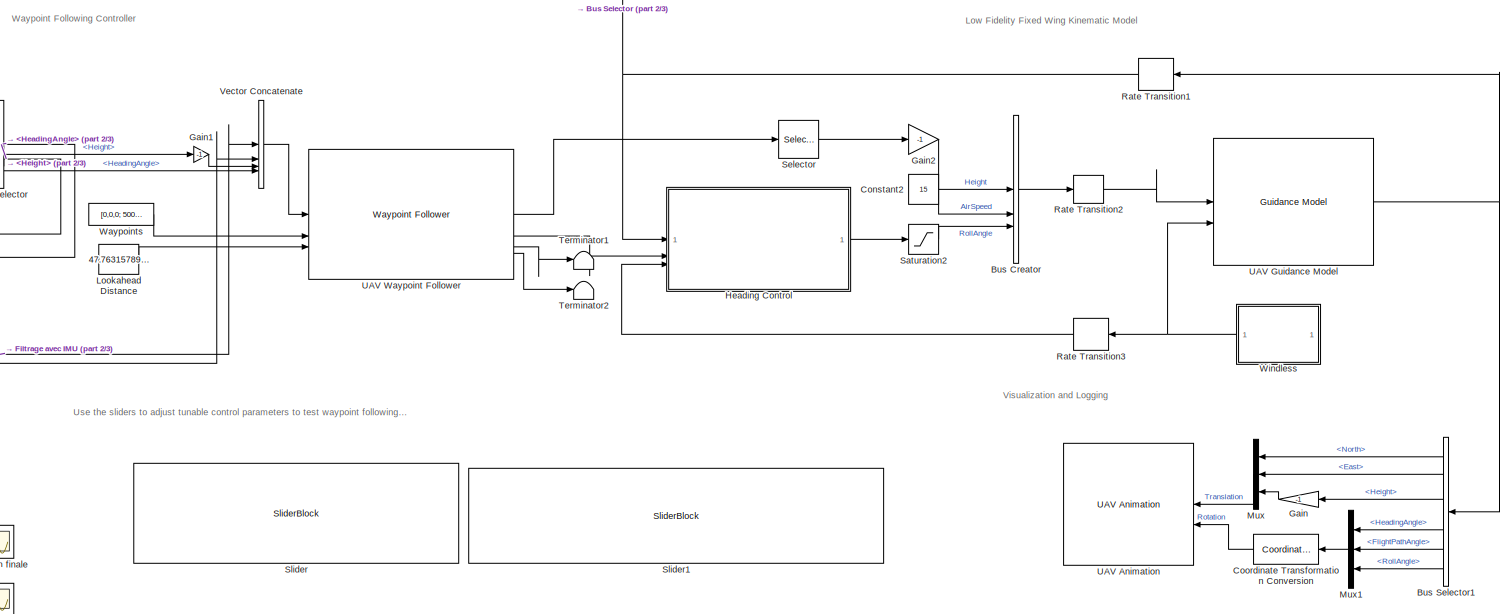
[diagram: root canvas - part 1/3, top center region]
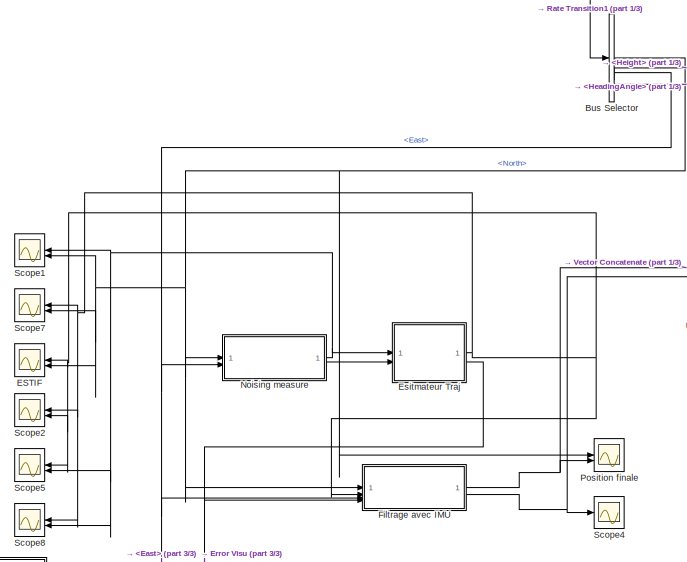
[diagram: root canvas - part 2/3, middle left region]
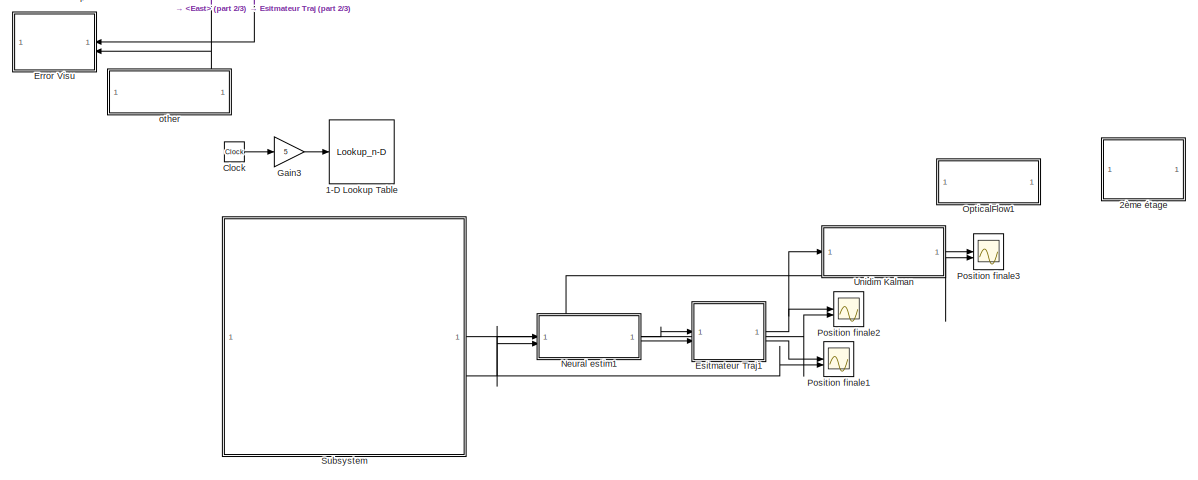
[diagram: root canvas - part 3/3, bottom left region]
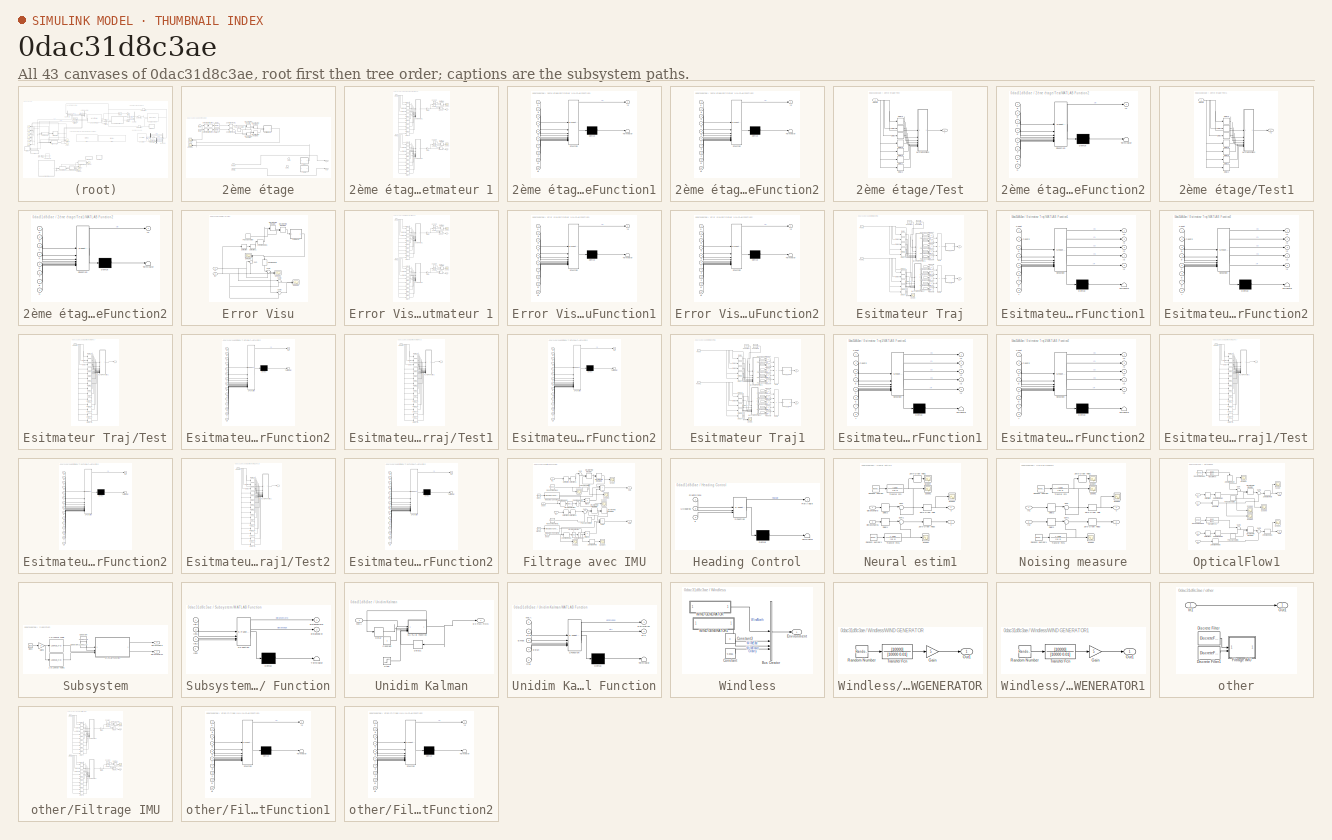
[diagram: thumbnail index - all 43 canvases of the model, root first then tree order]
MODEL slx_0dac31d8c3ae
KIND model
CONFIG AbsTol = auto
CONFIG EnableMultiTasking = off
CONFIG FixedStep = 0.01
CONFIG MaxStep = auto
CONFIG MinStep = auto
CONFIG RelTol = 1e-3
CONFIG SampleTimeConstraint = Unconstrained
CONFIG SolverName = FixedStepAuto
CONFIG StartTime = 0.0
CONFIG StopTime = 70
WORKSPACE source: external: MATLAB File  (data not in archive)
BLOCK [Lookup_n-D] 1-D Lookup Table
  BreakpointsForDimension1 = 1:337
  InputPortMap = u0
  InternalRulePriority = Speed
  NumberOfTableDimensions = 1
  RndMeth = Simplest
  Table = LOGPOSX
BLOCK [SubSystem] 2ème étage
BLOCK [Delay] 2ème étage/Delay
  DelayLength = 1
  InitialCondition = 0
  InputPortMap = u0
  SampleTime = 0.05
BLOCK [Delay] 2ème étage/Delay1
  DelayLength = 1
  InitialCondition = 0
  InputPortMap = u0
  SampleTime = 0.05
BLOCK [Derivative] 2ème étage/Derivative
BLOCK [Derivative] 2ème étage/Derivative1
BLOCK [Derivative] 2ème étage/Derivative2
BLOCK [Derivative] 2ème étage/Derivative3
BLOCK [DiscreteIntegrator] 2ème étage/Discrete-Time Integrator
  ExternalReset = rising
  ICPrevOutput = DiscIntNeverNeededParam
  ICPrevScaledInput = DiscIntNeverNeededParam
  InitialConditionSetting = Auto
  SampleTime = 0.1
BLOCK [DiscreteIntegrator] 2ème étage/Discrete-Time Integrator1
  ExternalReset = rising
  ICPrevOutput = DiscIntNeverNeededParam
  ICPrevScaledInput = DiscIntNeverNeededParam
  InitialConditionSetting = Auto
  SampleTime = 0.1
BLOCK [DiscreteIntegrator] 2ème étage/Discrete-Time Integrator2
  ExternalReset = rising
  ICPrevOutput = DiscIntNeverNeededParam
  ICPrevScaledInput = DiscIntNeverNeededParam
  InitialConditionSetting = Auto
  SampleTime = 0.1
BLOCK [DiscreteIntegrator] 2ème étage/Discrete-Time Integrator3
  ExternalReset = rising
  ICPrevOutput = DiscIntNeverNeededParam
  ICPrevScaledInput = DiscIntNeverNeededParam
  InitialConditionSetting = Auto
  SampleTime = 0.1
BLOCK [SubSystem] 2ème étage/Esitmateur 1
BLOCK [Constant] 2ème étage/Esitmateur 1/Constant1
  Value = 9
BLOCK [Constant] 2ème étage/Esitmateur 1/Constant2
  Value = 9
BLOCK [Delay] 2ème étage/Esitmateur 1/Delay1
  DelayLength = 6
  InputPortMap = u0
  SampleTime = Tgps
BLOCK [Delay] 2ème étage/Esitmateur 1/Delay10
  DelayLength = 6
  InputPortMap = u0
  SampleTime = Tgps
BLOCK [Delay] 2ème étage/Esitmateur 1/Delay11
  DelayLength = 7
  InputPortMap = u0
  SampleTime = Tgps
BLOCK [Delay] 2ème étage/Esitmateur 1/Delay12
  DelayLength = 8
  InputPortMap = u0
  SampleTime = Tgps
BLOCK [Delay] 2ème étage/Esitmateur 1/Delay13
  DelayLength = 9
  InputPortMap = u0
  SampleTime = Tgps
BLOCK [Delay] 2ème étage/Esitmateur 1/Delay14
  DelayLength = 1
  InputPortMap = u0
  SampleTime = Tgps
BLOCK [Delay] 2ème étage/Esitmateur 1/Delay15
  InputPortMap = u0
  SampleTime = Tgps
BLOCK [Delay] 2ème étage/Esitmateur 1/Delay16
  DelayLength = 3
  InputPortMap = u0
  SampleTime = Tgps
BLOCK [Delay] 2ème étage/Esitmateur 1/Delay17
  DelayLength = 4
  InputPortMap = u0
  SampleTime = Tgps
BLOCK [Delay] 2ème étage/Esitmateur 1/Delay18
  DelayLength = 5
  InputPortMap = u0
  SampleTime = Tgps
BLOCK [Delay] 2ème étage/Esitmateur 1/Delay2
  DelayLength = 7
  InputPortMap = u0
  SampleTime = Tgps
BLOCK [Delay] 2ème étage/Esitmateur 1/Delay3
  DelayLength = 8
  InputPortMap = u0
  SampleTime = Tgps
BLOCK [Delay] 2ème étage/Esitmateur 1/Delay4
  DelayLength = 9
  InputPortMap = u0
  SampleTime = Tgps
BLOCK [Delay] 2ème étage/Esitmateur 1/Delay5
  DelayLength = 1
  InputPortMap = u0
  SampleTime = Tgps
BLOCK [Delay] 2ème étage/Esitmateur 1/Delay6
  InputPortMap = u0
  SampleTime = Tgps
BLOCK [Delay] 2ème étage/Esitmateur 1/Delay7
  DelayLength = 3
  InputPortMap = u0
  SampleTime = Tgps
BLOCK [Delay] 2ème étage/Esitmateur 1/Delay8
  DelayLength = 4
  InputPortMap = u0
  SampleTime = Tgps
BLOCK [Delay] 2ème étage/Esitmateur 1/Delay9
  DelayLength = 5
  InputPortMap = u0
  SampleTime = Tgps
BLOCK [Gain] 2ème étage/Esitmateur 1/Gain1
  Gain = -16
BLOCK [Gain] 2ème étage/Esitmateur 1/Gain2
  Gain = -16
BLOCK [SubSystem] 2ème étage/Esitmateur 1/MATLAB Function1
  ErrorFcn = Stateflow.Translate.translate
  LibrarySourceBlock = simulink/User-Defined\nFunctions/MATLAB Function
  PermitHierarchicalResolution = ExplicitOnly
  SFBlockType = MATLAB Function
  TreatAsAtomicUnit = on
BLOCK [Demux] 2ème étage/Esitmateur 1/MATLAB Function1/ Demux 
  Outputs = 1
BLOCK [S-Function] 2ème étage/Esitmateur 1/MATLAB Function1/ SFunction 
  EnableBusSupport = off
  FunctionName = sf_sfun
  PortCounts = [10 2]
  SFcnIsStateOwnerBlock = off
  SFunctionDeploymentMode = off
  Tag = Stateflow S-Function 5
BLOCK [Terminator] 2ème étage/Esitmateur 1/MATLAB Function1/ Terminator 
BLOCK [Inport] 2ème étage/Esitmateur 1/MATLAB Function1/a
BLOCK [Inport] 2ème étage/Esitmateur 1/MATLAB Function1/ai
  Port = 9
BLOCK [Inport] 2ème étage/Esitmateur 1/MATLAB Function1/aj
  Port = 10
BLOCK [Inport] 2ème étage/Esitmateur 1/MATLAB Function1/b
  Port = 2
BLOCK [Inport] 2ème étage/Esitmateur 1/MATLAB Function1/c
  Port = 3
BLOCK [Inport] 2ème étage/Esitmateur 1/MATLAB Function1/d
  Port = 4
BLOCK [Inport] 2ème étage/Esitmateur 1/MATLAB Function1/e
  Port = 5
BLOCK [Inport] 2ème étage/Esitmateur 1/MATLAB Function1/f
  Port = 6
BLOCK [Inport] 2ème étage/Esitmateur 1/MATLAB Function1/g
  Port = 7
BLOCK [Inport] 2ème étage/Esitmateur 1/MATLAB Function1/h
  Port = 8
BLOCK [Outport] 2ème étage/Esitmateur 1/MATLAB Function1/y0
BLOCK [SubSystem] 2ème étage/Esitmateur 1/MATLAB Function2
  ErrorFcn = Stateflow.Translate.translate
  LibrarySourceBlock = simulink/User-Defined\nFunctions/MATLAB Function
  PermitHierarchicalResolution = ExplicitOnly
  SFBlockType = MATLAB Function
  TreatAsAtomicUnit = on
BLOCK [Demux] 2ème étage/Esitmateur 1/MATLAB Function2/ Demux 
  Outputs = 1
BLOCK [S-Function] 2ème étage/Esitmateur 1/MATLAB Function2/ SFunction 
  EnableBusSupport = off
  FunctionName = sf_sfun
  PortCounts = [10 2]
  SFcnIsStateOwnerBlock = off
  SFunctionDeploymentMode = off
  Tag = Stateflow S-Function 11
BLOCK [Terminator] 2ème étage/Esitmateur 1/MATLAB Function2/ Terminator 
BLOCK [Inport] 2ème étage/Esitmateur 1/MATLAB Function2/a
BLOCK [Inport] 2ème étage/Esitmateur 1/MATLAB Function2/ai
  Port = 9
BLOCK [Inport] 2ème étage/Esitmateur 1/MATLAB Function2/aj
  Port = 10
BLOCK [Inport] 2ème étage/Esitmateur 1/MATLAB Function2/b
  Port = 2
BLOCK [Inport] 2ème étage/Esitmateur 1/MATLAB Function2/c
  Port = 3
BLOCK [Inport] 2ème étage/Esitmateur 1/MATLAB Function2/d
  Port = 4
BLOCK [Inport] 2ème étage/Esitmateur 1/MATLAB Function2/e
  Port = 5
BLOCK [Inport] 2ème étage/Esitmateur 1/MATLAB Function2/f
  Port = 6
BLOCK [Inport] 2ème étage/Esitmateur 1/MATLAB Function2/g
  Port = 7
BLOCK [Inport] 2ème étage/Esitmateur 1/MATLAB Function2/h
  Port = 8
BLOCK [Outport] 2ème étage/Esitmateur 1/MATLAB Function2/y0
BLOCK [Inport] 2ème étage/Esitmateur 1/PosN1
BLOCK [Inport] 2ème étage/Esitmateur 1/PosN2
  Port = 2
BLOCK [Product] 2ème étage/Esitmateur 1/Product1
BLOCK [Product] 2ème étage/Esitmateur 1/Product2
BLOCK [RelationalOperator] 2ème étage/Esitmateur 1/Relational Operator1
  InputSameDT = off
  Operator = <
  OutDataTypeStr = boolean
  RndMeth = Simplest
BLOCK [RelationalOperator] 2ème étage/Esitmateur 1/Relational Operator2
  InputSameDT = off
  Operator = <
  OutDataTypeStr = boolean
  RndMeth = Simplest
BLOCK [Scope] 2ème étage/Esitmateur 1/Scope1
  Floating = off
  NumInputPorts = 1
  ScopeSpecificationString = Simulink.scopes.TimeScopeBlockCfg('CurrentConfiguration', extmgr.ConfigurationSet(extmgr.Configuration('Core','General UI',true),extmgr.Configuration('Core','Source UI',true),extmgr.Configuration('Sources','WiredSimulink',true,'DataLoggingVariableName','ScopeData2'),extmgr.Configuration('Visuals','Time Domain',true,'SerializedDisplays',{struct('MinYLimReal','-0.125','MaxYLimReal','1.125','YLabelRe...<+1366ch>  <repeated x3 — deduplicated; at blocks: Scope1>
BLOCK [Scope] 2ème étage/Esitmateur 1/Scope2
  Floating = off
  NumInputPorts = 1
  ScopeSpecificationString = Simulink.scopes.TimeScopeBlockCfg('CurrentConfiguration', extmgr.ConfigurationSet(extmgr.Configuration('Core','General UI',true),extmgr.Configuration('Core','Source UI',true),extmgr.Configuration('Sources','WiredSimulink',true,'DataLoggingVariableName','ScopeData9'),extmgr.Configuration('Visuals','Time Domain',true,'SerializedDisplays',{struct('MinYLimReal','-0.125','MaxYLimReal','1.125','YLabelRe...<+1366ch>
BLOCK [Math] 2ème étage/Esitmateur 1/Square1
  Operator = square
BLOCK [Math] 2ème étage/Esitmateur 1/Square2
  Operator = square
BLOCK [Outport] 2ème étage/Esitmateur 1/Y1
BLOCK [Outport] 2ème étage/Esitmateur 1/Y2
  Port = 2
BLOCK [Inport] 2ème étage/IMUE
  Port = 2
BLOCK [Inport] 2ème étage/IMUN
BLOCK [Inport] 2ème étage/PosE
  Port = 4
BLOCK [Inport] 2ème étage/PosN
  Port = 3
BLOCK [DiscretePulseGenerator] 2ème étage/Pulse Generator
  Period = Tneuro
  PulseType = Time based
  PulseWidth = 50
BLOCK [Scope] 2ème étage/Scope
  Floating = off
  NameLocation = top
  NumInputPorts = 2
  ScopeSpecificationString = Simulink.scopes.TimeScopeBlockCfg('CurrentConfiguration', extmgr.ConfigurationSet(extmgr.Configuration('Core','General UI',true),extmgr.Configuration('Core','Source UI',true),extmgr.Configuration('Sources','WiredSimulink',true,'DataLoggingVariableName','ScopeData7'),extmgr.Configuration('Visuals','Time Domain',true,'SerializedDisplays',{struct('MinYLimReal','-18.54696','MaxYLimReal','22.17412','YL...<+1485ch>
BLOCK [Scope] 2ème étage/Scope1
  Floating = off
  NameLocation = top
  NumInputPorts = 2
  ScopeSpecificationString = Simulink.scopes.TimeScopeBlockCfg('CurrentConfiguration', extmgr.ConfigurationSet(extmgr.Configuration('Core','General UI',true),extmgr.Configuration('Core','Source UI',true),extmgr.Configuration('Sources','WiredSimulink',true,'DataLoggingVariableName','ScopeData9'),extmgr.Configuration('Visuals','Time Domain',true,'SerializedDisplays',{struct('MinYLimReal','-185.29746','MaxYLimReal','688.75643','...<+1478ch>
BLOCK [Sum] 2ème étage/Sum
  Inputs = |+-
BLOCK [Sum] 2ème étage/Sum1
  Inputs = |+-
BLOCK [SubSystem] 2ème étage/Test
BLOCK [Delay] 2ème étage/Test/Delay1
  DelayLength = 6
  InputPortMap = u0
  SampleTime = Tgps
BLOCK [Delay] 2ème étage/Test/Delay2
  DelayLength = 7
  InputPortMap = u0
  SampleTime = Tgps
BLOCK [Delay] 2ème étage/Test/Delay5
  DelayLength = 1
  InputPortMap = u0
  SampleTime = Tgps
BLOCK [Delay] 2ème étage/Test/Delay6
  InputPortMap = u0
  SampleTime = Tgps
BLOCK [Delay] 2ème étage/Test/Delay7
  DelayLength = 3
  InputPortMap = u0
  SampleTime = Tgps
BLOCK [Delay] 2ème étage/Test/Delay8
  DelayLength = 4
  InputPortMap = u0
  SampleTime = Tgps
BLOCK [Delay] 2ème étage/Test/Delay9
  DelayLength = 5
  InputPortMap = u0
  SampleTime = Tgps
BLOCK [SubSystem] 2ème étage/Test/MATLAB Function2
  ErrorFcn = Stateflow.Translate.translate
  LibrarySourceBlock = simulink/User-Defined\nFunctions/MATLAB Function
  PermitHierarchicalResolution = ExplicitOnly
  SFBlockType = MATLAB Function
  TreatAsAtomicUnit = on
BLOCK [Demux] 2ème étage/Test/MATLAB Function2/ Demux 
  Outputs = 1
BLOCK [S-Function] 2ème étage/Test/MATLAB Function2/ SFunction 
  EnableBusSupport = off
  FunctionName = sf_sfun
  PortCounts = [8 2]
  SFcnIsStateOwnerBlock = off
  SFunctionDeploymentMode = off
  Tag = Stateflow S-Function 8
BLOCK [Terminator] 2ème étage/Test/MATLAB Function2/ Terminator 
BLOCK [Inport] 2ème étage/Test/MATLAB Function2/a
BLOCK [Inport] 2ème étage/Test/MATLAB Function2/b
  Port = 2
BLOCK [Inport] 2ème étage/Test/MATLAB Function2/c
  Port = 3
BLOCK [Inport] 2ème étage/Test/MATLAB Function2/d
  Port = 4
BLOCK [Inport] 2ème étage/Test/MATLAB Function2/e
  Port = 5
BLOCK [Inport] 2ème étage/Test/MATLAB Function2/f
  Port = 6
BLOCK [Inport] 2ème étage/Test/MATLAB Function2/g
  Port = 7
BLOCK [Inport] 2ème étage/Test/MATLAB Function2/h
  Port = 8
BLOCK [Outport] 2ème étage/Test/MATLAB Function2/y0
BLOCK [Inport] 2ème étage/Test/PosN1
BLOCK [Outport] 2ème étage/Test/y
BLOCK [SubSystem] 2ème étage/Test1
BLOCK [Delay] 2ème étage/Test1/Delay1
  DelayLength = 6
  InputPortMap = u0
  SampleTime = Tgps
BLOCK [Delay] 2ème étage/Test1/Delay2
  DelayLength = 7
  InputPortMap = u0
  SampleTime = Tgps
BLOCK [Delay] 2ème étage/Test1/Delay5
  DelayLength = 1
  InputPortMap = u0
  SampleTime = Tgps
BLOCK [Delay] 2ème étage/Test1/Delay6
  InputPortMap = u0
  SampleTime = Tgps
BLOCK [Delay] 2ème étage/Test1/Delay7
  DelayLength = 3
  InputPortMap = u0
  SampleTime = Tgps
BLOCK [Delay] 2ème étage/Test1/Delay8
  DelayLength = 4
  InputPortMap = u0
  SampleTime = Tgps
BLOCK [Delay] 2ème étage/Test1/Delay9
  DelayLength = 5
  InputPortMap = u0
  SampleTime = Tgps
BLOCK [SubSystem] 2ème étage/Test1/MATLAB Function2
  ErrorFcn = Stateflow.Translate.translate
  LibrarySourceBlock = simulink/User-Defined\nFunctions/MATLAB Function
  PermitHierarchicalResolution = ExplicitOnly
  SFBlockType = MATLAB Function
  TreatAsAtomicUnit = on
BLOCK [Demux] 2ème étage/Test1/MATLAB Function2/ Demux 
  Outputs = 1
BLOCK [S-Function] 2ème étage/Test1/MATLAB Function2/ SFunction 
  EnableBusSupport = off
  FunctionName = sf_sfun
  PortCounts = [8 2]
  SFcnIsStateOwnerBlock = off
  SFunctionDeploymentMode = off
  Tag = Stateflow S-Function 9
BLOCK [Terminator] 2ème étage/Test1/MATLAB Function2/ Terminator 
BLOCK [Inport] 2ème étage/Test1/MATLAB Function2/a
BLOCK [Inport] 2ème étage/Test1/MATLAB Function2/b
  Port = 2
BLOCK [Inport] 2ème étage/Test1/MATLAB Function2/c
  Port = 3
BLOCK [Inport] 2ème étage/Test1/MATLAB Function2/d
  Port = 4
BLOCK [Inport] 2ème étage/Test1/MATLAB Function2/e
  Port = 5
BLOCK [Inport] 2ème étage/Test1/MATLAB Function2/f
  Port = 6
BLOCK [Inport] 2ème étage/Test1/MATLAB Function2/g
  Port = 7
BLOCK [Inport] 2ème étage/Test1/MATLAB Function2/h
  Port = 8
BLOCK [Outport] 2ème étage/Test1/MATLAB Function2/y0
BLOCK [Inport] 2ème étage/Test1/PosN1
BLOCK [Outport] 2ème étage/Test1/y1
BLOCK [ZeroOrderHold] 2ème étage/Zero-Order Hold1
  SampleTime = Tgps
BLOCK [ZeroOrderHold] 2ème étage/Zero-Order Hold2
  SampleTime = Tgps
BLOCK [Outport] 2ème étage/y
BLOCK [Outport] 2ème étage/y1
  Port = 2
BLOCK [BusCreator] Bus Creator
  DisplayOption = bar
  InheritFromInputs = on
  Inputs = 3
  NonVirtualBus = on
  OutDataTypeStr = Bus: FixedWingControlBus
BLOCK [BusSelector] Bus Selector
  OutputSignals = North,East,Height,HeadingAngle
BLOCK [BusSelector] Bus Selector1
  OutputSignals = North,East,Height,HeadingAngle,FlightPathAngle,RollAngle
BLOCK [Clock] Clock
BLOCK [Constant] Constant2
  Value = 15
BLOCK [Reference] Coordinate Transformation Conversion  REF=robotcorelib/Coordinate Transformation Conversion
  SourceBlock = robotcorelib/Coordinate Transformation Conversion
  SourceType = robotics.slcore.internal.block.CoordinateTransformationConversion
BLOCK [Scope] ESTIF
  Floating = off
  NameLocation = top
  NumInputPorts = 2
  ScopeSpecificationString = Simulink.scopes.TimeScopeBlockCfg('CurrentConfiguration', extmgr.ConfigurationSet(extmgr.Configuration('Core','General UI',true),extmgr.Configuration('Core','Source UI',true),extmgr.Configuration('Sources','WiredSimulink',true,'DataLoggingVariableName','ScopeData5'),extmgr.Configuration('Visuals','Time Domain',true,'SerializedDisplays',{struct('MinYLimReal','474.78535','MaxYLimReal','520.48766','Y...<+1482ch>
BLOCK [SubSystem] Error Visu
  NameLocation = top
BLOCK [Derivative] Error Visu/Derivative
BLOCK [Derivative] Error Visu/Derivative1
BLOCK [DiscreteIntegrator] Error Visu/Discrete-Time Integrator
  ExternalReset = rising
  ICPrevOutput = DiscIntNeverNeededParam
  ICPrevScaledInput = DiscIntNeverNeededParam
  InitialConditionSetting = Auto
  SampleTime = 0.1
BLOCK [DiscreteIntegrator] Error Visu/Discrete-Time Integrator1
  ExternalReset = rising
  ICPrevOutput = DiscIntNeverNeededParam
  ICPrevScaledInput = DiscIntNeverNeededParam
  InitialConditionSetting = Auto
  SampleTime = 0.1
BLOCK [Scope] Error Visu/ERROR1
  Floating = off
  NumInputPorts = 2
  ScopeSpecificationString = Simulink.scopes.TimeScopeBlockCfg('CurrentConfiguration', extmgr.ConfigurationSet(extmgr.Configuration('Core','General UI',true),extmgr.Configuration('Core','Source UI',true),extmgr.Configuration('Sources','WiredSimulink',true,'DataLoggingVariableName','ScopeData3'),extmgr.Configuration('Visuals','Time Domain',true,'SerializedDisplays',{struct('MinYLimReal','-70.97086','MaxYLimReal','638.69914','Y...<+1479ch>
BLOCK [Scope] Error Visu/ERROR2
  Floating = off
  NumInputPorts = 2
  ScopeSpecificationString = Simulink.scopes.TimeScopeBlockCfg('CurrentConfiguration', extmgr.ConfigurationSet(extmgr.Configuration('Core','General UI',true),extmgr.Configuration('Core','Source UI',true),extmgr.Configuration('Sources','WiredSimulink',true,'DataLoggingVariableName','ScopeData4'),extmgr.Configuration('Visuals','Time Domain',true,'SerializedDisplays',{struct('MinYLimReal','-21.5855','MaxYLimReal','19.67668','YLa...<+1458ch>
BLOCK [Scope] Error Visu/ERROR3
  Floating = off
  NameLocation = top
  NumInputPorts = 2
  ScopeSpecificationString = Simulink.scopes.TimeScopeBlockCfg('CurrentConfiguration', extmgr.ConfigurationSet(extmgr.Configuration('Core','General UI',true),extmgr.Configuration('Core','Source UI',true),extmgr.Configuration('Sources','WiredSimulink',true,'DataLoggingVariableName','ScopeData1'),extmgr.Configuration('Visuals','Time Domain',true,'SerializedDisplays',{struct('MinYLimReal','-6.91989','MaxYLimReal','0.51685','YLab...<+1478ch>
BLOCK [SubSystem] Error Visu/Esitmateur 1
BLOCK [Constant] Error Visu/Esitmateur 1/Constant1
  Value = 9
BLOCK [Constant] Error Visu/Esitmateur 1/Constant2
  Value = 9
BLOCK [Delay] Error Visu/Esitmateur 1/Delay1
  DelayLength = 6
  InputPortMap = u0
  SampleTime = Tgps
BLOCK [Delay] Error Visu/Esitmateur 1/Delay10
  DelayLength = 6
  InputPortMap = u0
  SampleTime = Tgps
BLOCK [Delay] Error Visu/Esitmateur 1/Delay11
  DelayLength = 7
  InputPortMap = u0
  SampleTime = Tgps
BLOCK [Delay] Error Visu/Esitmateur 1/Delay12
  DelayLength = 8
  InputPortMap = u0
  SampleTime = Tgps
BLOCK [Delay] Error Visu/Esitmateur 1/Delay13
  DelayLength = 9
  InputPortMap = u0
  SampleTime = Tgps
BLOCK [Delay] Error Visu/Esitmateur 1/Delay14
  DelayLength = 1
  InputPortMap = u0
  SampleTime = Tgps
BLOCK [Delay] Error Visu/Esitmateur 1/Delay15
  InputPortMap = u0
  SampleTime = Tgps
BLOCK [Delay] Error Visu/Esitmateur 1/Delay16
  DelayLength = 3
  InputPortMap = u0
  SampleTime = Tgps
BLOCK [Delay] Error Visu/Esitmateur 1/Delay17
  DelayLength = 4
  InputPortMap = u0
  SampleTime = Tgps
BLOCK [Delay] Error Visu/Esitmateur 1/Delay18
  DelayLength = 5
  InputPortMap = u0
  SampleTime = Tgps
BLOCK [Delay] Error Visu/Esitmateur 1/Delay2
  DelayLength = 7
  InputPortMap = u0
  SampleTime = Tgps
BLOCK [Delay] Error Visu/Esitmateur 1/Delay3
  DelayLength = 8
  InputPortMap = u0
  SampleTime = Tgps
BLOCK [Delay] Error Visu/Esitmateur 1/Delay4
  DelayLength = 9
  InputPortMap = u0
  SampleTime = Tgps
BLOCK [Delay] Error Visu/Esitmateur 1/Delay5
  DelayLength = 1
  InputPortMap = u0
  SampleTime = Tgps
BLOCK [Delay] Error Visu/Esitmateur 1/Delay6
  InputPortMap = u0
  SampleTime = Tgps
BLOCK [Delay] Error Visu/Esitmateur 1/Delay7
  DelayLength = 3
  InputPortMap = u0
  SampleTime = Tgps
BLOCK [Delay] Error Visu/Esitmateur 1/Delay8
  DelayLength = 4
  InputPortMap = u0
  SampleTime = Tgps
BLOCK [Delay] Error Visu/Esitmateur 1/Delay9
  DelayLength = 5
  InputPortMap = u0
  SampleTime = Tgps
BLOCK [Gain] Error Visu/Esitmateur 1/Gain1
  Gain = -15
BLOCK [Gain] Error Visu/Esitmateur 1/Gain2
  Gain = -16
BLOCK [SubSystem] Error Visu/Esitmateur 1/MATLAB Function1
  ErrorFcn = Stateflow.Translate.translate
  LibrarySourceBlock = simulink/User-Defined\nFunctions/MATLAB Function
  PermitHierarchicalResolution = ExplicitOnly
  SFBlockType = MATLAB Function
  TreatAsAtomicUnit = on
BLOCK [Demux] Error Visu/Esitmateur 1/MATLAB Function1/ Demux 
  Outputs = 1
BLOCK [S-Function] Error Visu/Esitmateur 1/MATLAB Function1/ SFunction 
  EnableBusSupport = off
  FunctionName = sf_sfun
  PortCounts = [10 2]
  SFcnIsStateOwnerBlock = off
  SFunctionDeploymentMode = off
  Tag = Stateflow S-Function 10
BLOCK [Terminator] Error Visu/Esitmateur 1/MATLAB Function1/ Terminator 
BLOCK [Inport] Error Visu/Esitmateur 1/MATLAB Function1/a
BLOCK [Inport] Error Visu/Esitmateur 1/MATLAB Function1/ai
  Port = 9
BLOCK [Inport] Error Visu/Esitmateur 1/MATLAB Function1/aj
  Port = 10
BLOCK [Inport] Error Visu/Esitmateur 1/MATLAB Function1/b
  Port = 2
BLOCK [Inport] Error Visu/Esitmateur 1/MATLAB Function1/c
  Port = 3
BLOCK [Inport] Error Visu/Esitmateur 1/MATLAB Function1/d
  Port = 4
BLOCK [Inport] Error Visu/Esitmateur 1/MATLAB Function1/e
  Port = 5
BLOCK [Inport] Error Visu/Esitmateur 1/MATLAB Function1/f
  Port = 6
BLOCK [Inport] Error Visu/Esitmateur 1/MATLAB Function1/g
  Port = 7
BLOCK [Inport] Error Visu/Esitmateur 1/MATLAB Function1/h
  Port = 8
BLOCK [Outport] Error Visu/Esitmateur 1/MATLAB Function1/y0
BLOCK [SubSystem] Error Visu/Esitmateur 1/MATLAB Function2
  ErrorFcn = Stateflow.Translate.translate
  LibrarySourceBlock = simulink/User-Defined\nFunctions/MATLAB Function
  PermitHierarchicalResolution = ExplicitOnly
  SFBlockType = MATLAB Function
  TreatAsAtomicUnit = on
BLOCK [Demux] Error Visu/Esitmateur 1/MATLAB Function2/ Demux 
  Outputs = 1
BLOCK [S-Function] Error Visu/Esitmateur 1/MATLAB Function2/ SFunction 
  EnableBusSupport = off
  FunctionName = sf_sfun
  PortCounts = [10 2]
  SFcnIsStateOwnerBlock = off
  SFunctionDeploymentMode = off
  Tag = Stateflow S-Function 4
BLOCK [Terminator] Error Visu/Esitmateur 1/MATLAB Function2/ Terminator 
BLOCK [Inport] Error Visu/Esitmateur 1/MATLAB Function2/a
BLOCK [Inport] Error Visu/Esitmateur 1/MATLAB Function2/ai
  Port = 9
BLOCK [Inport] Error Visu/Esitmateur 1/MATLAB Function2/aj
  Port = 10
BLOCK [Inport] Error Visu/Esitmateur 1/MATLAB Function2/b
  Port = 2
BLOCK [Inport] Error Visu/Esitmateur 1/MATLAB Function2/c
  Port = 3
BLOCK [Inport] Error Visu/Esitmateur 1/MATLAB Function2/d
  Port = 4
BLOCK [Inport] Error Visu/Esitmateur 1/MATLAB Function2/e
  Port = 5
BLOCK [Inport] Error Visu/Esitmateur 1/MATLAB Function2/f
  Port = 6
BLOCK [Inport] Error Visu/Esitmateur 1/MATLAB Function2/g
  Port = 7
BLOCK [Inport] Error Visu/Esitmateur 1/MATLAB Function2/h
  Port = 8
BLOCK [Outport] Error Visu/Esitmateur 1/MATLAB Function2/y0
BLOCK [Inport] Error Visu/Esitmateur 1/PosN1
BLOCK [Inport] Error Visu/Esitmateur 1/PosN2
  Port = 2
BLOCK [Product] Error Visu/Esitmateur 1/Product1
BLOCK [Product] Error Visu/Esitmateur 1/Product2
BLOCK [RelationalOperator] Error Visu/Esitmateur 1/Relational Operator1
  InputSameDT = off
  Operator = <
  OutDataTypeStr = boolean
  RndMeth = Simplest
BLOCK [RelationalOperator] Error Visu/Esitmateur 1/Relational Operator2
  InputSameDT = off
  Operator = <
  OutDataTypeStr = boolean
  RndMeth = Simplest
BLOCK [Scope] Error Visu/Esitmateur 1/Scope1
  Floating = off
  NumInputPorts = 1
BLOCK [Scope] Error Visu/Esitmateur 1/Scope2
  Floating = off
  NumInputPorts = 1
  ScopeSpecificationString = Simulink.scopes.TimeScopeBlockCfg('CurrentConfiguration', extmgr.ConfigurationSet(extmgr.Configuration('Core','General UI',true),extmgr.Configuration('Core','Source UI',true),extmgr.Configuration('Sources','WiredSimulink',true,'DataLoggingVariableName','ScopeData9'),extmgr.Configuration('Visuals','Time Domain',true,'SerializedDisplays',{struct('MinYLimReal','-0.125','MaxYLimReal','1.125','YLabelRe...<+1366ch>
BLOCK [Math] Error Visu/Esitmateur 1/Square1
  Operator = square
BLOCK [Math] Error Visu/Esitmateur 1/Square2
  Operator = square
BLOCK [Outport] Error Visu/Esitmateur 1/Y1
BLOCK [Outport] Error Visu/Esitmateur 1/Y2
  Port = 2
BLOCK [Inport] Error Visu/In2
  Port = 2
BLOCK [DiscretePulseGenerator] Error Visu/Pulse Generator
  Period = Tneuro
  PulseType = Time based
  PulseWidth = 50
BLOCK [Sum] Error Visu/Sum
  Inputs = |+-
BLOCK [Sum] Error Visu/Sum1
  Inputs = |-+
BLOCK [Sum] Error Visu/Sum2
  Inputs = |-+
BLOCK [Sum] Error Visu/Sum3
  Inputs = |-+
BLOCK [ZeroOrderHold] Error Visu/Zero-Order Hold
  NameLocation = left
  SampleTime = Tgps
BLOCK [ZeroOrderHold] Error Visu/Zero-Order Hold1
  SampleTime = Tgps
BLOCK [Inport] Error Visu/y1
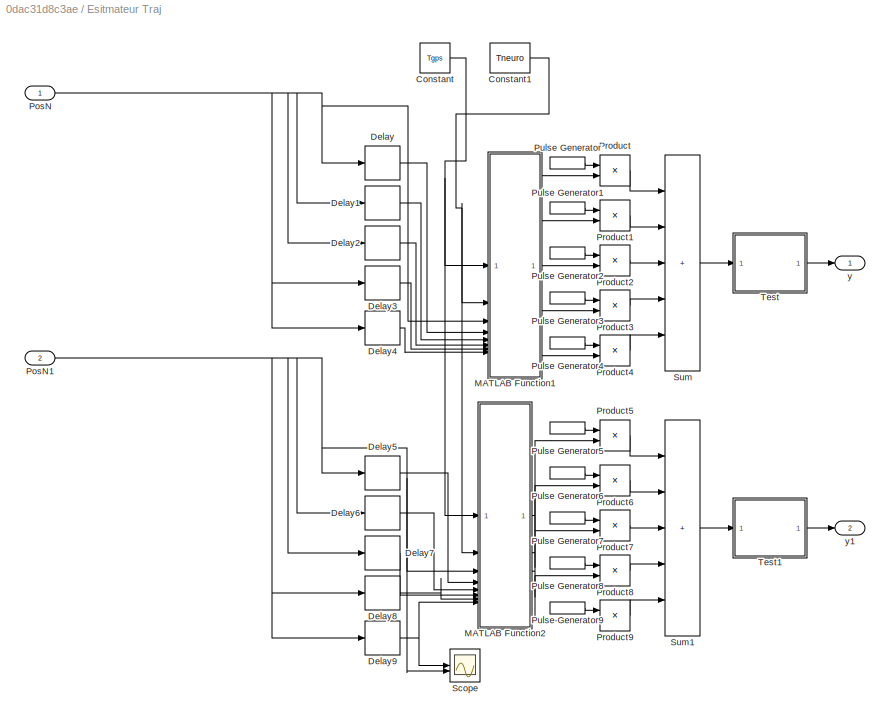
BLOCK [SubSystem] Esitmateur Traj
BLOCK [Constant] Esitmateur Traj/Constant
  Value = Tgps
BLOCK [Constant] Esitmateur Traj/Constant1
  Value = Tneuro
BLOCK [Delay] Esitmateur Traj/Delay
  DelayLength = 1
  InputPortMap = u0
  SampleTime = Tneuro
BLOCK [Delay] Esitmateur Traj/Delay1
  InputPortMap = u0
  SampleTime = Tneuro
BLOCK [Delay] Esitmateur Traj/Delay2
  DelayLength = 3
  InputPortMap = u0
  SampleTime = Tneuro
BLOCK [Delay] Esitmateur Traj/Delay3
  DelayLength = 4
  InputPortMap = u0
  SampleTime = Tneuro
BLOCK [Delay] Esitmateur Traj/Delay4
  DelayLength = 5
  InputPortMap = u0
  SampleTime = Tneuro
BLOCK [Delay] Esitmateur Traj/Delay5
  DelayLength = 1
  InputPortMap = u0
  SampleTime = Tneuro
BLOCK [Delay] Esitmateur Traj/Delay6
  InputPortMap = u0
  SampleTime = Tneuro
BLOCK [Delay] Esitmateur Traj/Delay7
  DelayLength = 3
  InputPortMap = u0
  SampleTime = Tneuro
BLOCK [Delay] Esitmateur Traj/Delay8
  DelayLength = 4
  InputPortMap = u0
  SampleTime = Tneuro
BLOCK [Delay] Esitmateur Traj/Delay9
  DelayLength = 5
  InputPortMap = u0
  SampleTime = Tneuro
BLOCK [SubSystem] Esitmateur Traj/MATLAB Function1
  ErrorFcn = Stateflow.Translate.translate
  LibrarySourceBlock = simulink/User-Defined\nFunctions/MATLAB Function
  PermitHierarchicalResolution = ExplicitOnly
  SFBlockType = MATLAB Function
  TreatAsAtomicUnit = on
BLOCK [Demux] Esitmateur Traj/MATLAB Function1/ Demux 
  Outputs = 1
BLOCK [S-Function] Esitmateur Traj/MATLAB Function1/ SFunction 
  EnableBusSupport = off
  FunctionName = sf_sfun
  PortCounts = [8 6]
  SFcnIsStateOwnerBlock = off
  SFunctionDeploymentMode = off
  Tag = Stateflow S-Function 3
BLOCK [Terminator] Esitmateur Traj/MATLAB Function1/ Terminator 
BLOCK [Inport] Esitmateur Traj/MATLAB Function1/Const
BLOCK [Inport] Esitmateur Traj/MATLAB Function1/Const2
  Port = 2
BLOCK [Inport] Esitmateur Traj/MATLAB Function1/a
  Port = 3
BLOCK [Inport] Esitmateur Traj/MATLAB Function1/b
  Port = 4
BLOCK [Inport] Esitmateur Traj/MATLAB Function1/c
  Port = 5
BLOCK [Inport] Esitmateur Traj/MATLAB Function1/d
  Port = 6
BLOCK [Inport] Esitmateur Traj/MATLAB Function1/e
  Port = 7
BLOCK [Inport] Esitmateur Traj/MATLAB Function1/f
  Port = 8
BLOCK [Outport] Esitmateur Traj/MATLAB Function1/y0
BLOCK [Outport] Esitmateur Traj/MATLAB Function1/y1
  Port = 2
BLOCK [Outport] Esitmateur Traj/MATLAB Function1/y2
  Port = 3
BLOCK [Outport] Esitmateur Traj/MATLAB Function1/y3
  Port = 4
BLOCK [Outport] Esitmateur Traj/MATLAB Function1/y4
  Port = 5
BLOCK [SubSystem] Esitmateur Traj/MATLAB Function2
  ErrorFcn = Stateflow.Translate.translate
  LibrarySourceBlock = simulink/User-Defined\nFunctions/MATLAB Function
  PermitHierarchicalResolution = ExplicitOnly
  SFBlockType = MATLAB Function
  TreatAsAtomicUnit = on
BLOCK [Demux] Esitmateur Traj/MATLAB Function2/ Demux 
  Outputs = 1
BLOCK [S-Function] Esitmateur Traj/MATLAB Function2/ SFunction 
  EnableBusSupport = off
  FunctionName = sf_sfun
  PortCounts = [8 6]
  SFcnIsStateOwnerBlock = off
  SFunctionDeploymentMode = off
  Tag = Stateflow S-Function 1
BLOCK [Terminator] Esitmateur Traj/MATLAB Function2/ Terminator 
BLOCK [Inport] Esitmateur Traj/MATLAB Function2/Const
BLOCK [Inport] Esitmateur Traj/MATLAB Function2/Const2
  Port = 2
BLOCK [Inport] Esitmateur Traj/MATLAB Function2/a
  Port = 3
BLOCK [Inport] Esitmateur Traj/MATLAB Function2/b
  Port = 4
BLOCK [Inport] Esitmateur Traj/MATLAB Function2/c
  Port = 5
BLOCK [Inport] Esitmateur Traj/MATLAB Function2/d
  Port = 6
BLOCK [Inport] Esitmateur Traj/MATLAB Function2/e
  Port = 7
BLOCK [Inport] Esitmateur Traj/MATLAB Function2/f
  Port = 8
BLOCK [Outport] Esitmateur Traj/MATLAB Function2/y0
BLOCK [Outport] Esitmateur Traj/MATLAB Function2/y1
  Port = 2
BLOCK [Outport] Esitmateur Traj/MATLAB Function2/y2
  Port = 3
BLOCK [Outport] Esitmateur Traj/MATLAB Function2/y3
  Port = 4
BLOCK [Outport] Esitmateur Traj/MATLAB Function2/y4
  Port = 5
BLOCK [Inport] Esitmateur Traj/PosN
BLOCK [Inport] Esitmateur Traj/PosN1
  Port = 2
BLOCK [Product] Esitmateur Traj/Product
BLOCK [Product] Esitmateur Traj/Product1
BLOCK [Product] Esitmateur Traj/Product2
BLOCK [Product] Esitmateur Traj/Product3
BLOCK [Product] Esitmateur Traj/Product4
BLOCK [Product] Esitmateur Traj/Product5
BLOCK [Product] Esitmateur Traj/Product6
BLOCK [Product] Esitmateur Traj/Product7
BLOCK [Product] Esitmateur Traj/Product8
BLOCK [Product] Esitmateur Traj/Product9
BLOCK [DiscretePulseGenerator] Esitmateur Traj/Pulse Generator
  Period = Tneuro
  PulseType = Time based
  PulseWidth = 20
BLOCK [DiscretePulseGenerator] Esitmateur Traj/Pulse Generator1
  Period = Tneuro
  PhaseDelay = 0.2*Tneuro
  PulseType = Time based
  PulseWidth = 20
BLOCK [DiscretePulseGenerator] Esitmateur Traj/Pulse Generator2
  Period = Tneuro
  PhaseDelay = 0.4*Tneuro
  PulseType = Time based
  PulseWidth = 20
BLOCK [DiscretePulseGenerator] Esitmateur Traj/Pulse Generator3
  Period = Tneuro
  PhaseDelay = 0.6*Tneuro
  PulseType = Time based
  PulseWidth = 20
BLOCK [DiscretePulseGenerator] Esitmateur Traj/Pulse Generator4
  Period = Tneuro
  PhaseDelay = 0.8*Tneuro
  PulseType = Time based
  PulseWidth = 20
BLOCK [DiscretePulseGenerator] Esitmateur Traj/Pulse Generator5
  Period = Tneuro
  PulseType = Time based
  PulseWidth = 20
BLOCK [DiscretePulseGenerator] Esitmateur Traj/Pulse Generator6
  Period = Tneuro
  PhaseDelay = 0.2*Tneuro
  PulseType = Time based
  PulseWidth = 20
BLOCK [DiscretePulseGenerator] Esitmateur Traj/Pulse Generator7
  Period = Tneuro
  PhaseDelay = 0.4*Tneuro
  PulseType = Time based
  PulseWidth = 20
BLOCK [DiscretePulseGenerator] Esitmateur Traj/Pulse Generator8
  Period = Tneuro
  PhaseDelay = 0.6*Tneuro
  PulseType = Time based
  PulseWidth = 20
BLOCK [DiscretePulseGenerator] Esitmateur Traj/Pulse Generator9
  Period = Tneuro
  PhaseDelay = 0.8*Tneuro
  PulseType = Time based
  PulseWidth = 20
BLOCK [Scope] Esitmateur Traj/Scope
  Floating = off
  NumInputPorts = 2
  ScopeSpecificationString = Simulink.scopes.TimeScopeBlockCfg('CurrentConfiguration', extmgr.ConfigurationSet(extmgr.Configuration('Core','General UI',true),extmgr.Configuration('Core','Source UI',true),extmgr.Configuration('Sources','WiredSimulink',true,'DataLoggingVariableName','ScopeData1'),extmgr.Configuration('Visuals','Time Domain',true,'SerializedDisplays',{struct('MinYLimReal','-56.14876','MaxYLimReal','470.88885','Y...<+1402ch>
BLOCK [Sum] Esitmateur Traj/Sum
  IconShape = rectangular
  Inputs = +++++
BLOCK [Sum] Esitmateur Traj/Sum1
  IconShape = rectangular
  Inputs = +++++
BLOCK [SubSystem] Esitmateur Traj/Test
BLOCK [Delay] Esitmateur Traj/Test/Delay1
  DelayLength = 6
  InputPortMap = u0
  SampleTime = Tgps
BLOCK [Delay] Esitmateur Traj/Test/Delay10
  DelayLength = 10
  InputPortMap = u0
  SampleTime = Tgps
BLOCK [Delay] Esitmateur Traj/Test/Delay11
  DelayLength = 11
  InputPortMap = u0
  SampleTime = Tgps
BLOCK [Delay] Esitmateur Traj/Test/Delay12
  DelayLength = 12
  InputPortMap = u0
  SampleTime = Tgps
BLOCK [Delay] Esitmateur Traj/Test/Delay13
  DelayLength = 13
  InputPortMap = u0
  SampleTime = Tgps
BLOCK [Delay] Esitmateur Traj/Test/Delay14
  DelayLength = 14
  InputPortMap = u0
  SampleTime = Tgps
BLOCK [Delay] Esitmateur Traj/Test/Delay2
  DelayLength = 7
  InputPortMap = u0
  SampleTime = Tgps
BLOCK [Delay] Esitmateur Traj/Test/Delay3
  DelayLength = 8
  InputPortMap = u0
  SampleTime = Tgps
BLOCK [Delay] Esitmateur Traj/Test/Delay4
  DelayLength = 9
  InputPortMap = u0
  SampleTime = Tgps
BLOCK [Delay] Esitmateur Traj/Test/Delay5
  DelayLength = 1
  InputPortMap = u0
  SampleTime = Tgps
BLOCK [Delay] Esitmateur Traj/Test/Delay6
  InputPortMap = u0
  SampleTime = Tgps
BLOCK [Delay] Esitmateur Traj/Test/Delay7
  DelayLength = 3
  InputPortMap = u0
  SampleTime = Tgps
BLOCK [Delay] Esitmateur Traj/Test/Delay8
  DelayLength = 4
  InputPortMap = u0
  SampleTime = Tgps
BLOCK [Delay] Esitmateur Traj/Test/Delay9
  DelayLength = 5
  InputPortMap = u0
  SampleTime = Tgps
BLOCK [SubSystem] Esitmateur Traj/Test/MATLAB Function2
  ErrorFcn = Stateflow.Translate.translate
  LibrarySourceBlock = simulink/User-Defined\nFunctions/MATLAB Function
  PermitHierarchicalResolution = ExplicitOnly
  SFBlockType = MATLAB Function
  TreatAsAtomicUnit = on
BLOCK [Demux] Esitmateur Traj/Test/MATLAB Function2/ Demux 
  Outputs = 1
BLOCK [S-Function] Esitmateur Traj/Test/MATLAB Function2/ SFunction 
  EnableBusSupport = off
  FunctionName = sf_sfun
  PortCounts = [15 2]
  SFcnIsStateOwnerBlock = off
  SFunctionDeploymentMode = off
  Tag = Stateflow S-Function 13
BLOCK [Terminator] Esitmateur Traj/Test/MATLAB Function2/ Terminator 
BLOCK [Inport] Esitmateur Traj/Test/MATLAB Function2/a
BLOCK [Inport] Esitmateur Traj/Test/MATLAB Function2/b
  Port = 2
BLOCK [Inport] Esitmateur Traj/Test/MATLAB Function2/c
  Port = 3
BLOCK [Inport] Esitmateur Traj/Test/MATLAB Function2/d
  Port = 4
BLOCK [Inport] Esitmateur Traj/Test/MATLAB Function2/e
  Port = 5
BLOCK [Inport] Esitmateur Traj/Test/MATLAB Function2/f
  Port = 6
BLOCK [Inport] Esitmateur Traj/Test/MATLAB Function2/g
  Port = 7
BLOCK [Inport] Esitmateur Traj/Test/MATLAB Function2/h
  Port = 8
BLOCK [Inport] Esitmateur Traj/Test/MATLAB Function2/ii
  Port = 9
BLOCK [Inport] Esitmateur Traj/Test/MATLAB Function2/jj
  Port = 10
BLOCK [Inport] Esitmateur Traj/Test/MATLAB Function2/k
  Port = 11
BLOCK [Inport] Esitmateur Traj/Test/MATLAB Function2/l
  Port = 12
BLOCK [Inport] Esitmateur Traj/Test/MATLAB Function2/m
  Port = 13
BLOCK [Inport] Esitmateur Traj/Test/MATLAB Function2/n
  Port = 14
BLOCK [Inport] Esitmateur Traj/Test/MATLAB Function2/o
  Port = 15
BLOCK [Outport] Esitmateur Traj/Test/MATLAB Function2/y0
BLOCK [Inport] Esitmateur Traj/Test/PosN1
BLOCK [Outport] Esitmateur Traj/Test/y
BLOCK [SubSystem] Esitmateur Traj/Test1
BLOCK [Delay] Esitmateur Traj/Test1/Delay1
  DelayLength = 6
  InputPortMap = u0
  SampleTime = Tgps
BLOCK [Delay] Esitmateur Traj/Test1/Delay10
  DelayLength = 10
  InputPortMap = u0
  SampleTime = Tgps
BLOCK [Delay] Esitmateur Traj/Test1/Delay11
  DelayLength = 11
  InputPortMap = u0
  SampleTime = Tgps
BLOCK [Delay] Esitmateur Traj/Test1/Delay12
  DelayLength = 12
  InputPortMap = u0
  SampleTime = Tgps
BLOCK [Delay] Esitmateur Traj/Test1/Delay13
  DelayLength = 13
  InputPortMap = u0
  SampleTime = Tgps
BLOCK [Delay] Esitmateur Traj/Test1/Delay14
  DelayLength = 14
  InputPortMap = u0
  SampleTime = Tgps
BLOCK [Delay] Esitmateur Traj/Test1/Delay2
  DelayLength = 7
  InputPortMap = u0
  SampleTime = Tgps
BLOCK [Delay] Esitmateur Traj/Test1/Delay3
  DelayLength = 8
  InputPortMap = u0
  SampleTime = Tgps
BLOCK [Delay] Esitmateur Traj/Test1/Delay4
  DelayLength = 9
  InputPortMap = u0
  SampleTime = Tgps
BLOCK [Delay] Esitmateur Traj/Test1/Delay5
  DelayLength = 1
  InputPortMap = u0
  SampleTime = Tgps
BLOCK [Delay] Esitmateur Traj/Test1/Delay6
  InputPortMap = u0
  SampleTime = Tgps
BLOCK [Delay] Esitmateur Traj/Test1/Delay7
  DelayLength = 3
  InputPortMap = u0
  SampleTime = Tgps
BLOCK [Delay] Esitmateur Traj/Test1/Delay8
  DelayLength = 4
  InputPortMap = u0
  SampleTime = Tgps
BLOCK [Delay] Esitmateur Traj/Test1/Delay9
  DelayLength = 5
  InputPortMap = u0
  SampleTime = Tgps
BLOCK [SubSystem] Esitmateur Traj/Test1/MATLAB Function2
  ErrorFcn = Stateflow.Translate.translate
  LibrarySourceBlock = simulink/User-Defined\nFunctions/MATLAB Function
  PermitHierarchicalResolution = ExplicitOnly
  SFBlockType = MATLAB Function
  TreatAsAtomicUnit = on
BLOCK [Demux] Esitmateur Traj/Test1/MATLAB Function2/ Demux 
  Outputs = 1
BLOCK [S-Function] Esitmateur Traj/Test1/MATLAB Function2/ SFunction 
  EnableBusSupport = off
  FunctionName = sf_sfun
  PortCounts = [15 2]
  SFcnIsStateOwnerBlock = off
  SFunctionDeploymentMode = off
  Tag = Stateflow S-Function 12
BLOCK [Terminator] Esitmateur Traj/Test1/MATLAB Function2/ Terminator 
BLOCK [Inport] Esitmateur Traj/Test1/MATLAB Function2/a
BLOCK [Inport] Esitmateur Traj/Test1/MATLAB Function2/b
  Port = 2
BLOCK [Inport] Esitmateur Traj/Test1/MATLAB Function2/c
  Port = 3
BLOCK [Inport] Esitmateur Traj/Test1/MATLAB Function2/d
  Port = 4
BLOCK [Inport] Esitmateur Traj/Test1/MATLAB Function2/e
  Port = 5
BLOCK [Inport] Esitmateur Traj/Test1/MATLAB Function2/f
  Port = 6
BLOCK [Inport] Esitmateur Traj/Test1/MATLAB Function2/g
  Port = 7
BLOCK [Inport] Esitmateur Traj/Test1/MATLAB Function2/h
  Port = 8
BLOCK [Inport] Esitmateur Traj/Test1/MATLAB Function2/ii
  Port = 9
BLOCK [Inport] Esitmateur Traj/Test1/MATLAB Function2/jj
  Port = 10
BLOCK [Inport] Esitmateur Traj/Test1/MATLAB Function2/k
  Port = 11
BLOCK [Inport] Esitmateur Traj/Test1/MATLAB Function2/l
  Port = 12
BLOCK [Inport] Esitmateur Traj/Test1/MATLAB Function2/m
  Port = 13
BLOCK [Inport] Esitmateur Traj/Test1/MATLAB Function2/n
  Port = 14
BLOCK [Inport] Esitmateur Traj/Test1/MATLAB Function2/o
  Port = 15
BLOCK [Outport] Esitmateur Traj/Test1/MATLAB Function2/y0
BLOCK [Inport] Esitmateur Traj/Test1/PosN1
BLOCK [Outport] Esitmateur Traj/Test1/y
BLOCK [Outport] Esitmateur Traj/y
BLOCK [Outport] Esitmateur Traj/y1
  Port = 2
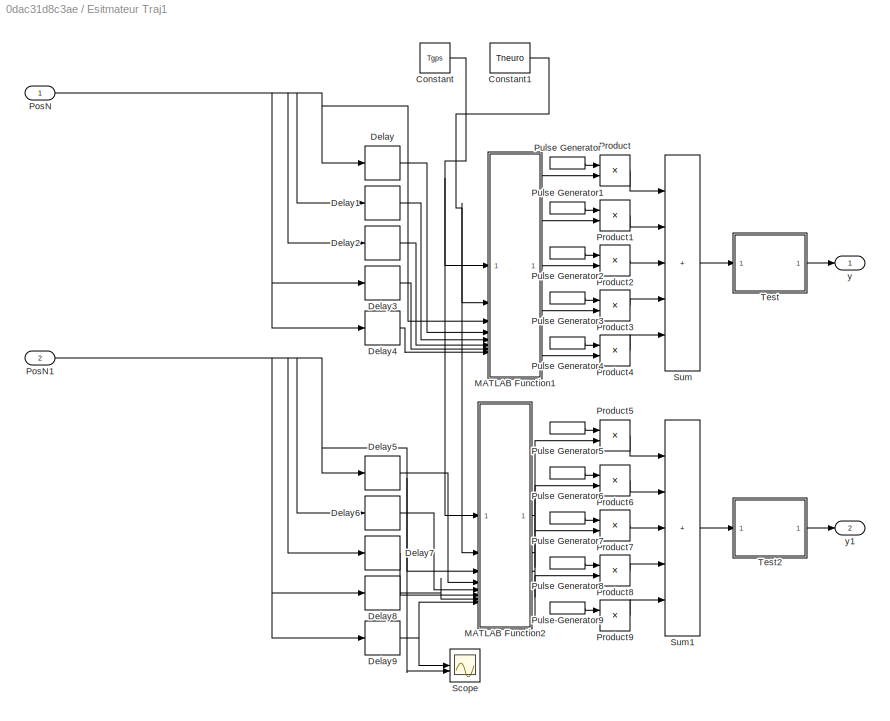
BLOCK [SubSystem] Esitmateur Traj1
BLOCK [Constant] Esitmateur Traj1/Constant
  Value = Tgps
BLOCK [Constant] Esitmateur Traj1/Constant1
  Value = Tneuro
BLOCK [Delay] Esitmateur Traj1/Delay
  DelayLength = 1
  InputPortMap = u0
  SampleTime = Tneuro
BLOCK [Delay] Esitmateur Traj1/Delay1
  InputPortMap = u0
  SampleTime = Tneuro
BLOCK [Delay] Esitmateur Traj1/Delay2
  DelayLength = 3
  InputPortMap = u0
  SampleTime = Tneuro
BLOCK [Delay] Esitmateur Traj1/Delay3
  DelayLength = 4
  InputPortMap = u0
  SampleTime = Tneuro
BLOCK [Delay] Esitmateur Traj1/Delay4
  DelayLength = 5
  InputPortMap = u0
  SampleTime = Tneuro
BLOCK [Delay] Esitmateur Traj1/Delay5
  DelayLength = 1
  InputPortMap = u0
  SampleTime = Tneuro
BLOCK [Delay] Esitmateur Traj1/Delay6
  InputPortMap = u0
  SampleTime = Tneuro
BLOCK [Delay] Esitmateur Traj1/Delay7
  DelayLength = 3
  InputPortMap = u0
  SampleTime = Tneuro
BLOCK [Delay] Esitmateur Traj1/Delay8
  DelayLength = 4
  InputPortMap = u0
  SampleTime = Tneuro
BLOCK [Delay] Esitmateur Traj1/Delay9
  DelayLength = 5
  InputPortMap = u0
  SampleTime = Tneuro
BLOCK [SubSystem] Esitmateur Traj1/MATLAB Function1
  ErrorFcn = Stateflow.Translate.translate
  LibrarySourceBlock = simulink/User-Defined\nFunctions/MATLAB Function
  PermitHierarchicalResolution = ExplicitOnly
  SFBlockType = MATLAB Function
  TreatAsAtomicUnit = on
BLOCK [Demux] Esitmateur Traj1/MATLAB Function1/ Demux 
  Outputs = 1
BLOCK [S-Function] Esitmateur Traj1/MATLAB Function1/ SFunction 
  EnableBusSupport = off
  FunctionName = sf_sfun
  PortCounts = [8 6]
  SFcnIsStateOwnerBlock = off
  SFunctionDeploymentMode = off
  Tag = Stateflow S-Function 15
BLOCK [Terminator] Esitmateur Traj1/MATLAB Function1/ Terminator 
BLOCK [Inport] Esitmateur Traj1/MATLAB Function1/Const
BLOCK [Inport] Esitmateur Traj1/MATLAB Function1/Const2
  Port = 2
BLOCK [Inport] Esitmateur Traj1/MATLAB Function1/a
  Port = 3
BLOCK [Inport] Esitmateur Traj1/MATLAB Function1/b
  Port = 4
BLOCK [Inport] Esitmateur Traj1/MATLAB Function1/c
  Port = 5
BLOCK [Inport] Esitmateur Traj1/MATLAB Function1/d
  Port = 6
BLOCK [Inport] Esitmateur Traj1/MATLAB Function1/e
  Port = 7
BLOCK [Inport] Esitmateur Traj1/MATLAB Function1/f
  Port = 8
BLOCK [Outport] Esitmateur Traj1/MATLAB Function1/y0
BLOCK [Outport] Esitmateur Traj1/MATLAB Function1/y1
  Port = 2
BLOCK [Outport] Esitmateur Traj1/MATLAB Function1/y2
  Port = 3
BLOCK [Outport] Esitmateur Traj1/MATLAB Function1/y3
  Port = 4
BLOCK [Outport] Esitmateur Traj1/MATLAB Function1/y4
  Port = 5
BLOCK [SubSystem] Esitmateur Traj1/MATLAB Function2
  ErrorFcn = Stateflow.Translate.translate
  LibrarySourceBlock = simulink/User-Defined\nFunctions/MATLAB Function
  PermitHierarchicalResolution = ExplicitOnly
  SFBlockType = MATLAB Function
  TreatAsAtomicUnit = on
BLOCK [Demux] Esitmateur Traj1/MATLAB Function2/ Demux 
  Outputs = 1
BLOCK [S-Function] Esitmateur Traj1/MATLAB Function2/ SFunction 
  EnableBusSupport = off
  FunctionName = sf_sfun
  PortCounts = [8 6]
  SFcnIsStateOwnerBlock = off
  SFunctionDeploymentMode = off
  Tag = Stateflow S-Function 14
BLOCK [Terminator] Esitmateur Traj1/MATLAB Function2/ Terminator 
BLOCK [Inport] Esitmateur Traj1/MATLAB Function2/Const
BLOCK [Inport] Esitmateur Traj1/MATLAB Function2/Const2
  Port = 2
BLOCK [Inport] Esitmateur Traj1/MATLAB Function2/a
  Port = 3
BLOCK [Inport] Esitmateur Traj1/MATLAB Function2/b
  Port = 4
BLOCK [Inport] Esitmateur Traj1/MATLAB Function2/c
  Port = 5
BLOCK [Inport] Esitmateur Traj1/MATLAB Function2/d
  Port = 6
BLOCK [Inport] Esitmateur Traj1/MATLAB Function2/e
  Port = 7
BLOCK [Inport] Esitmateur Traj1/MATLAB Function2/f
  Port = 8
BLOCK [Outport] Esitmateur Traj1/MATLAB Function2/y0
BLOCK [Outport] Esitmateur Traj1/MATLAB Function2/y1
  Port = 2
BLOCK [Outport] Esitmateur Traj1/MATLAB Function2/y2
  Port = 3
BLOCK [Outport] Esitmateur Traj1/MATLAB Function2/y3
  Port = 4
BLOCK [Outport] Esitmateur Traj1/MATLAB Function2/y4
  Port = 5
BLOCK [Inport] Esitmateur Traj1/PosN
BLOCK [Inport] Esitmateur Traj1/PosN1
  Port = 2
BLOCK [Product] Esitmateur Traj1/Product
BLOCK [Product] Esitmateur Traj1/Product1
BLOCK [Product] Esitmateur Traj1/Product2
BLOCK [Product] Esitmateur Traj1/Product3
BLOCK [Product] Esitmateur Traj1/Product4
BLOCK [Product] Esitmateur Traj1/Product5
BLOCK [Product] Esitmateur Traj1/Product6
BLOCK [Product] Esitmateur Traj1/Product7
BLOCK [Product] Esitmateur Traj1/Product8
BLOCK [Product] Esitmateur Traj1/Product9
BLOCK [DiscretePulseGenerator] Esitmateur Traj1/Pulse Generator
  Period = Tneuro
  PulseType = Time based
  PulseWidth = 20
BLOCK [DiscretePulseGenerator] Esitmateur Traj1/Pulse Generator1
  Period = Tneuro
  PhaseDelay = 0.2*Tneuro
  PulseType = Time based
  PulseWidth = 20
BLOCK [DiscretePulseGenerator] Esitmateur Traj1/Pulse Generator2
  Period = Tneuro
  PhaseDelay = 0.4*Tneuro
  PulseType = Time based
  PulseWidth = 20
BLOCK [DiscretePulseGenerator] Esitmateur Traj1/Pulse Generator3
  Period = Tneuro
  PhaseDelay = 0.6*Tneuro
  PulseType = Time based
  PulseWidth = 20
BLOCK [DiscretePulseGenerator] Esitmateur Traj1/Pulse Generator4
  Period = Tneuro
  PhaseDelay = 0.8*Tneuro
  PulseType = Time based
  PulseWidth = 20
BLOCK [DiscretePulseGenerator] Esitmateur Traj1/Pulse Generator5
  Period = Tneuro
  PulseType = Time based
  PulseWidth = 20
BLOCK [DiscretePulseGenerator] Esitmateur Traj1/Pulse Generator6
  Period = Tneuro
  PhaseDelay = 0.2*Tneuro
  PulseType = Time based
  PulseWidth = 20
BLOCK [DiscretePulseGenerator] Esitmateur Traj1/Pulse Generator7
  Period = Tneuro
  PhaseDelay = 0.4*Tneuro
  PulseType = Time based
  PulseWidth = 20
BLOCK [DiscretePulseGenerator] Esitmateur Traj1/Pulse Generator8
  Period = Tneuro
  PhaseDelay = 0.6*Tneuro
  PulseType = Time based
  PulseWidth = 20
BLOCK [DiscretePulseGenerator] Esitmateur Traj1/Pulse Generator9
  Period = Tneuro
  PhaseDelay = 0.8*Tneuro
  PulseType = Time based
  PulseWidth = 20
BLOCK [Scope] Esitmateur Traj1/Scope
  Floating = off
  NumInputPorts = 2
  ScopeSpecificationString = Simulink.scopes.TimeScopeBlockCfg('CurrentConfiguration', extmgr.ConfigurationSet(extmgr.Configuration('Core','General UI',true),extmgr.Configuration('Core','Source UI',true),extmgr.Configuration('Sources','WiredSimulink',true,'DataLoggingVariableName','ScopeData1'),extmgr.Configuration('Visuals','Time Domain',true,'SerializedDisplays',{struct('MinYLimReal','-56.14876','MaxYLimReal','470.88885','Y...<+1402ch>
BLOCK [Sum] Esitmateur Traj1/Sum
  IconShape = rectangular
  Inputs = +++++
BLOCK [Sum] Esitmateur Traj1/Sum1
  IconShape = rectangular
  Inputs = +++++
BLOCK [SubSystem] Esitmateur Traj1/Test
BLOCK [Delay] Esitmateur Traj1/Test/Delay1
  DelayLength = 6
  InputPortMap = u0
  SampleTime = Tgps
BLOCK [Delay] Esitmateur Traj1/Test/Delay10
  DelayLength = 10
  InputPortMap = u0
  SampleTime = Tgps
BLOCK [Delay] Esitmateur Traj1/Test/Delay11
  DelayLength = 11
  InputPortMap = u0
  SampleTime = Tgps
BLOCK [Delay] Esitmateur Traj1/Test/Delay12
  DelayLength = 12
  InputPortMap = u0
  SampleTime = Tgps
BLOCK [Delay] Esitmateur Traj1/Test/Delay13
  DelayLength = 13
  InputPortMap = u0
  SampleTime = Tgps
BLOCK [Delay] Esitmateur Traj1/Test/Delay14
  DelayLength = 14
  InputPortMap = u0
  SampleTime = Tgps
BLOCK [Delay] Esitmateur Traj1/Test/Delay2
  DelayLength = 7
  InputPortMap = u0
  SampleTime = Tgps
BLOCK [Delay] Esitmateur Traj1/Test/Delay3
  DelayLength = 8
  InputPortMap = u0
  SampleTime = Tgps
BLOCK [Delay] Esitmateur Traj1/Test/Delay4
  DelayLength = 9
  InputPortMap = u0
  SampleTime = Tgps
BLOCK [Delay] Esitmateur Traj1/Test/Delay5
  DelayLength = 1
  InputPortMap = u0
  SampleTime = Tgps
BLOCK [Delay] Esitmateur Traj1/Test/Delay6
  InputPortMap = u0
  SampleTime = Tgps
BLOCK [Delay] Esitmateur Traj1/Test/Delay7
  DelayLength = 3
  InputPortMap = u0
  SampleTime = Tgps
BLOCK [Delay] Esitmateur Traj1/Test/Delay8
  DelayLength = 4
  InputPortMap = u0
  SampleTime = Tgps
BLOCK [Delay] Esitmateur Traj1/Test/Delay9
  DelayLength = 5
  InputPortMap = u0
  SampleTime = Tgps
BLOCK [SubSystem] Esitmateur Traj1/Test/MATLAB Function2
  ErrorFcn = Stateflow.Translate.translate
  LibrarySourceBlock = simulink/User-Defined\nFunctions/MATLAB Function
  PermitHierarchicalResolution = ExplicitOnly
  SFBlockType = MATLAB Function
  TreatAsAtomicUnit = on
BLOCK [Demux] Esitmateur Traj1/Test/MATLAB Function2/ Demux 
  Outputs = 1
BLOCK [S-Function] Esitmateur Traj1/Test/MATLAB Function2/ SFunction 
  EnableBusSupport = off
  FunctionName = sf_sfun
  PortCounts = [15 2]
  SFcnIsStateOwnerBlock = off
  SFunctionDeploymentMode = off
  Tag = Stateflow S-Function 17
BLOCK [Terminator] Esitmateur Traj1/Test/MATLAB Function2/ Terminator 
BLOCK [Inport] Esitmateur Traj1/Test/MATLAB Function2/a
BLOCK [Inport] Esitmateur Traj1/Test/MATLAB Function2/b
  Port = 2
BLOCK [Inport] Esitmateur Traj1/Test/MATLAB Function2/c
  Port = 3
BLOCK [Inport] Esitmateur Traj1/Test/MATLAB Function2/d
  Port = 4
BLOCK [Inport] Esitmateur Traj1/Test/MATLAB Function2/e
  Port = 5
BLOCK [Inport] Esitmateur Traj1/Test/MATLAB Function2/f
  Port = 6
BLOCK [Inport] Esitmateur Traj1/Test/MATLAB Function2/g
  Port = 7
BLOCK [Inport] Esitmateur Traj1/Test/MATLAB Function2/h
  Port = 8
BLOCK [Inport] Esitmateur Traj1/Test/MATLAB Function2/ii
  Port = 9
BLOCK [Inport] Esitmateur Traj1/Test/MATLAB Function2/jj
  Port = 10
BLOCK [Inport] Esitmateur Traj1/Test/MATLAB Function2/k
  Port = 11
BLOCK [Inport] Esitmateur Traj1/Test/MATLAB Function2/l
  Port = 12
BLOCK [Inport] Esitmateur Traj1/Test/MATLAB Function2/m
  Port = 13
BLOCK [Inport] Esitmateur Traj1/Test/MATLAB Function2/n
  Port = 14
BLOCK [Inport] Esitmateur Traj1/Test/MATLAB Function2/o
  Port = 15
BLOCK [Outport] Esitmateur Traj1/Test/MATLAB Function2/y0
BLOCK [Inport] Esitmateur Traj1/Test/PosN1
BLOCK [Outport] Esitmateur Traj1/Test/y
BLOCK [SubSystem] Esitmateur Traj1/Test2
BLOCK [Delay] Esitmateur Traj1/Test2/Delay1
  DelayLength = 6
  InputPortMap = u0
  SampleTime = Tgps
BLOCK [Delay] Esitmateur Traj1/Test2/Delay10
  DelayLength = 10
  InputPortMap = u0
  SampleTime = Tgps
BLOCK [Delay] Esitmateur Traj1/Test2/Delay11
  DelayLength = 11
  InputPortMap = u0
  SampleTime = Tgps
BLOCK [Delay] Esitmateur Traj1/Test2/Delay12
  DelayLength = 12
  InputPortMap = u0
  SampleTime = Tgps
BLOCK [Delay] Esitmateur Traj1/Test2/Delay13
  DelayLength = 13
  InputPortMap = u0
  SampleTime = Tgps
BLOCK [Delay] Esitmateur Traj1/Test2/Delay14
  DelayLength = 14
  InputPortMap = u0
  SampleTime = Tgps
BLOCK [Delay] Esitmateur Traj1/Test2/Delay2
  DelayLength = 7
  InputPortMap = u0
  SampleTime = Tgps
BLOCK [Delay] Esitmateur Traj1/Test2/Delay3
  DelayLength = 8
  InputPortMap = u0
  SampleTime = Tgps
BLOCK [Delay] Esitmateur Traj1/Test2/Delay4
  DelayLength = 9
  InputPortMap = u0
  SampleTime = Tgps
BLOCK [Delay] Esitmateur Traj1/Test2/Delay5
  DelayLength = 1
  InputPortMap = u0
  SampleTime = Tgps
BLOCK [Delay] Esitmateur Traj1/Test2/Delay6
  InputPortMap = u0
  SampleTime = Tgps
BLOCK [Delay] Esitmateur Traj1/Test2/Delay7
  DelayLength = 3
  InputPortMap = u0
  SampleTime = Tgps
BLOCK [Delay] Esitmateur Traj1/Test2/Delay8
  DelayLength = 4
  InputPortMap = u0
  SampleTime = Tgps
BLOCK [Delay] Esitmateur Traj1/Test2/Delay9
  DelayLength = 5
  InputPortMap = u0
  SampleTime = Tgps
BLOCK [SubSystem] Esitmateur Traj1/Test2/MATLAB Function2
  ErrorFcn = Stateflow.Translate.translate
  LibrarySourceBlock = simulink/User-Defined\nFunctions/MATLAB Function
  PermitHierarchicalResolution = ExplicitOnly
  SFBlockType = MATLAB Function
  TreatAsAtomicUnit = on
BLOCK [Demux] Esitmateur Traj1/Test2/MATLAB Function2/ Demux 
  Outputs = 1
BLOCK [S-Function] Esitmateur Traj1/Test2/MATLAB Function2/ SFunction 
  EnableBusSupport = off
  FunctionName = sf_sfun
  PortCounts = [15 2]
  SFcnIsStateOwnerBlock = off
  SFunctionDeploymentMode = off
  Tag = Stateflow S-Function 16
BLOCK [Terminator] Esitmateur Traj1/Test2/MATLAB Function2/ Terminator 
BLOCK [Inport] Esitmateur Traj1/Test2/MATLAB Function2/a
BLOCK [Inport] Esitmateur Traj1/Test2/MATLAB Function2/b
  Port = 2
BLOCK [Inport] Esitmateur Traj1/Test2/MATLAB Function2/c
  Port = 3
BLOCK [Inport] Esitmateur Traj1/Test2/MATLAB Function2/d
  Port = 4
BLOCK [Inport] Esitmateur Traj1/Test2/MATLAB Function2/e
  Port = 5
BLOCK [Inport] Esitmateur Traj1/Test2/MATLAB Function2/f
  Port = 6
BLOCK [Inport] Esitmateur Traj1/Test2/MATLAB Function2/g
  Port = 7
BLOCK [Inport] Esitmateur Traj1/Test2/MATLAB Function2/h
  Port = 8
BLOCK [Inport] Esitmateur Traj1/Test2/MATLAB Function2/ii
  Port = 9
BLOCK [Inport] Esitmateur Traj1/Test2/MATLAB Function2/jj
  Port = 10
BLOCK [Inport] Esitmateur Traj1/Test2/MATLAB Function2/k
  Port = 11
BLOCK [Inport] Esitmateur Traj1/Test2/MATLAB Function2/l
  Port = 12
BLOCK [Inport] Esitmateur Traj1/Test2/MATLAB Function2/m
  Port = 13
BLOCK [Inport] Esitmateur Traj1/Test2/MATLAB Function2/n
  Port = 14
BLOCK [Inport] Esitmateur Traj1/Test2/MATLAB Function2/o
  Port = 15
BLOCK [Outport] Esitmateur Traj1/Test2/MATLAB Function2/y0
BLOCK [Inport] Esitmateur Traj1/Test2/PosN1
BLOCK [Outport] Esitmateur Traj1/Test2/y
BLOCK [Outport] Esitmateur Traj1/y
BLOCK [Outport] Esitmateur Traj1/y1
  Port = 2
BLOCK [SubSystem] Filtrage avec IMU
BLOCK [Sum] Filtrage avec IMU/Add
  IconShape = rectangular
  Inputs = +++
BLOCK [Sum] Filtrage avec IMU/Add1
  IconShape = rectangular
  Inputs = +++
BLOCK [Clock] Filtrage avec IMU/Clock
BLOCK [Clock] Filtrage avec IMU/Clock1
BLOCK [Derivative] Filtrage avec IMU/Derivative
BLOCK [Derivative] Filtrage avec IMU/Derivative1
BLOCK [Derivative] Filtrage avec IMU/Derivative2
BLOCK [Derivative] Filtrage avec IMU/Derivative3
BLOCK [Reference] Filtrage avec IMU/Discrete Derivative  REF=simulink/Discrete/Discrete Derivative
  SourceBlock = simulink/Discrete/Discrete Derivative
  SourceType = Discrete Derivative
BLOCK [Reference] Filtrage avec IMU/Discrete Derivative1  REF=simulink/Discrete/Discrete Derivative
  SourceBlock = simulink/Discrete/Discrete Derivative
  SourceType = Discrete Derivative
BLOCK [DiscreteIntegrator] Filtrage avec IMU/Discrete-Time Integrator
  ExternalReset = rising
  ICPrevOutput = DiscIntNeverNeededParam
  ICPrevScaledInput = DiscIntNeverNeededParam
  InitialConditionSetting = Auto
  SampleTime = 0.01
BLOCK [DiscreteIntegrator] Filtrage avec IMU/Discrete-Time Integrator1
  ExternalReset = rising
  ICPrevOutput = DiscIntNeverNeededParam
  ICPrevScaledInput = DiscIntNeverNeededParam
  InitialConditionSetting = Auto
  SampleTime = 0.01
BLOCK [DiscreteIntegrator] Filtrage avec IMU/Discrete-Time Integrator2
  ExternalReset = rising
  ICPrevOutput = DiscIntNeverNeededParam
  ICPrevScaledInput = DiscIntNeverNeededParam
  InitialConditionSetting = Auto
  SampleTime = 0.01
BLOCK [DiscreteIntegrator] Filtrage avec IMU/Discrete-Time Integrator3
  ExternalReset = rising
  ICPrevOutput = DiscIntNeverNeededParam
  ICPrevScaledInput = DiscIntNeverNeededParam
  InitialConditionSetting = Auto
  SampleTime = 0.01
BLOCK [Inport] Filtrage avec IMU/In1
BLOCK [Inport] Filtrage avec IMU/In2
  Port = 3
BLOCK [Reference] Filtrage avec IMU/Modulo by Constant  REF=embmathops/Modulo by Constant
  LibrarySourceBlock = embeddedMathLib/Modulo by Constant
  SourceBlock = embmathops/Modulo by Constant
  SourceType = fixed.system.ModByConstant
BLOCK [Reference] Filtrage avec IMU/Modulo by Constant1  REF=embmathops/Modulo by Constant
  LibrarySourceBlock = embeddedMathLib/Modulo by Constant
  SourceBlock = embmathops/Modulo by Constant
  SourceType = fixed.system.ModByConstant
BLOCK [Outport] Filtrage avec IMU/Out1
BLOCK [Outport] Filtrage avec IMU/Out2
  Port = 2
BLOCK [DiscretePulseGenerator] Filtrage avec IMU/Pulse Generator
  Period = Tgps
  PulseType = Time based
  PulseWidth = 50
BLOCK [DiscretePulseGenerator] Filtrage avec IMU/Pulse Generator1
  Period = Tgps
  PulseType = Time based
  PulseWidth = 50
BLOCK [RandomNumber] Filtrage avec IMU/Random Number
  SampleTime = 0.1
  Variance = 1*VarImu
BLOCK [RandomNumber] Filtrage avec IMU/Random Number1
  SampleTime = 0.1
  Variance = 1*VarImu
BLOCK [Scope] Filtrage avec IMU/Scope
  Floating = off
  NumInputPorts = 1
  ScopeSpecificationString = Simulink.scopes.TimeScopeBlockCfg('CurrentConfiguration', extmgr.ConfigurationSet(extmgr.Configuration('Core','General UI',true),extmgr.Configuration('Core','Source UI',true),extmgr.Configuration('Sources','WiredSimulink',true,'DataLoggingVariableName','ScopeData15'),extmgr.Configuration('Visuals','Time Domain',true,'SerializedDisplays',{struct('MinYLimReal','-0.06456','MaxYLimReal','0.09928','YLa...<+1459ch>
BLOCK [Scope] Filtrage avec IMU/Scope1
  Floating = off
  NumInputPorts = 1
  ScopeSpecificationString = Simulink.scopes.TimeScopeBlockCfg('CurrentConfiguration', extmgr.ConfigurationSet(extmgr.Configuration('Core','General UI',true),extmgr.Configuration('Core','Source UI',true),extmgr.Configuration('Sources','WiredSimulink',true,'DataLoggingVariableName','ScopeData16'),extmgr.Configuration('Visuals','Time Domain',true,'SerializedDisplays',{struct('MinYLimReal','-0.25687','MaxYLimReal','0.2805','YLab...<+1443ch>
BLOCK [Scope] Filtrage avec IMU/Scope2
  Floating = off
  NumInputPorts = 1
  ScopeSpecificationString = Simulink.scopes.TimeScopeBlockCfg('CurrentConfiguration', extmgr.ConfigurationSet(extmgr.Configuration('Core','General UI',true),extmgr.Configuration('Core','Source UI',true),extmgr.Configuration('Sources','WiredSimulink',true,'DataLoggingVariableName','ScopeData4'),extmgr.Configuration('Visuals','Time Domain',true,'SerializedDisplays',{struct('MinYLimReal','-30.17716','MaxYLimReal','38.75143','YL...<+1442ch>
BLOCK [Scope] Filtrage avec IMU/Scope3
  Floating = off
  NumInputPorts = 1
  ScopeSpecificationString = Simulink.scopes.TimeScopeBlockCfg('CurrentConfiguration', extmgr.ConfigurationSet(extmgr.Configuration('Core','General UI',true),extmgr.Configuration('Core','Source UI',true),extmgr.Configuration('Sources','WiredSimulink',true,'DataLoggingVariableName','ScopeData4'),extmgr.Configuration('Visuals','Time Domain',true,'SerializedDisplays',{struct('MinYLimReal','-0.125','MaxYLimReal','1.02841','YLabel...<+1389ch>
BLOCK [Scope] Filtrage avec IMU/Scope4
  Floating = off
  NumInputPorts = 1
  ScopeSpecificationString = Simulink.scopes.TimeScopeBlockCfg('CurrentConfiguration', extmgr.ConfigurationSet(extmgr.Configuration('Core','General UI',true),extmgr.Configuration('Core','Source UI',true),extmgr.Configuration('Sources','WiredSimulink',true,'DataLoggingVariableName','ScopeData5'),extmgr.Configuration('Visuals','Time Domain',true,'SerializedDisplays',{struct('MinYLimReal','-39.66503','MaxYLimReal','33.96594','YL...<+1424ch>
BLOCK [Scope] Filtrage avec IMU/Scope5
  Floating = off
  NumInputPorts = 1
  ScopeSpecificationString = Simulink.scopes.TimeScopeBlockCfg('CurrentConfiguration', extmgr.ConfigurationSet(extmgr.Configuration('Core','General UI',true),extmgr.Configuration('Core','Source UI',true),extmgr.Configuration('Sources','WiredSimulink',true,'DataLoggingVariableName','ScopeData6'),extmgr.Configuration('Visuals','Time Domain',true,'SerializedDisplays',{struct('MinYLimReal','-985.53234','MaxYLimReal','742.02217','...<+1421ch>
BLOCK [Sum] Filtrage avec IMU/Sum
  Inputs = |++
BLOCK [Sum] Filtrage avec IMU/Sum1
  Inputs = |++
BLOCK [ZeroOrderHold] Filtrage avec IMU/Zero-Order Hold
  SampleTime = Tgps
BLOCK [ZeroOrderHold] Filtrage avec IMU/Zero-Order Hold1
  SampleTime = Tneuro
BLOCK [ZeroOrderHold] Filtrage avec IMU/Zero-Order Hold2
  SampleTime = Tneuro
BLOCK [ZeroOrderHold] Filtrage avec IMU/Zero-Order Hold3
  SampleTime = Tgps
BLOCK [ZeroOrderHold] Filtrage avec IMU/Zero-Order Hold4
  SampleTime = Tgps
BLOCK [Product] Filtrage avec IMU/init Spd
BLOCK [Product] Filtrage avec IMU/init Spd1
BLOCK [Inport] Filtrage avec IMU/pose
  Port = 4
BLOCK [Inport] Filtrage avec IMU/posn
  Port = 2
BLOCK [Gain] Gain
  Gain = -1
BLOCK [Gain] Gain1
  Gain = -1
BLOCK [Gain] Gain2
  Gain = -1
BLOCK [Gain] Gain3
  Gain = 5
BLOCK [SubSystem] Heading Control
  ErrorFcn = Stateflow.Translate.translate
  PermitHierarchicalResolution = ExplicitOnly
  SFBlockType = MATLAB Function
  TreatAsAtomicUnit = on
BLOCK [Demux] Heading Control/ Demux 
  Outputs = 1
BLOCK [S-Function] Heading Control/ SFunction 
  EnableBusSupport = off
  FunctionName = sf_sfun
  Parameters = PHeadingAngle
  PortCounts = [3 2]
  SFcnIsStateOwnerBlock = off
  SFunctionDeploymentMode = off
  Tag = Stateflow S-Function 2
BLOCK [Terminator] Heading Control/ Terminator 
BLOCK [Inport] Heading Control/FlightState
BLOCK [Outport] Heading Control/RollAngle
  VectorParamsAs1DForOutWhenUnconnected = off
BLOCK [Inport] Heading Control/UHeading
  Port = 2
BLOCK [Inport] Heading Control/e
  Port = 3
BLOCK [Constant] Lookahead Distance
  Value = 47.76315789473684
BLOCK [Mux] Mux
  DisplayOption = bar
  Inputs = 3
BLOCK [Mux] Mux1
  DisplayOption = bar
  Inputs = 3
BLOCK [SubSystem] Neural estim1
BLOCK [Delay] Neural estim1/Delay1
  DelayLength = 1
  InputPortMap = u0
BLOCK [Delay] Neural estim1/Delay2
  DelayLength = 1
  InputPortMap = u0
BLOCK [RandomNumber] Neural estim1/Random Number
  SampleTime = 0.1
  Variance = 1*VarNeuro
BLOCK [RandomNumber] Neural estim1/Random Number1
  SampleTime = 0.1
  Variance = 1*VarNeuro
BLOCK [Scope] Neural estim1/Scope1
  Floating = off
  NumInputPorts = 1
  ScopeSpecificationString = Simulink.scopes.TimeScopeBlockCfg('CurrentConfiguration', extmgr.ConfigurationSet(extmgr.Configuration('Core','General UI',true),extmgr.Configuration('Core','Source UI',true),extmgr.Configuration('Sources','WiredSimulink',true,'DataLoggingVariableName','ScopeData7'),extmgr.Configuration('Visuals','Time Domain',true,'SerializedDisplays',{struct('MinYLimReal','-17.19783','MaxYLimReal','15.8237','YLa...<+1449ch>
BLOCK [Scope] Neural estim1/Scope2
  Floating = off
  NumInputPorts = 1
  ScopeSpecificationString = Simulink.scopes.TimeScopeBlockCfg('CurrentConfiguration', extmgr.ConfigurationSet(extmgr.Configuration('Core','General UI',true),extmgr.Configuration('Core','Source UI',true),extmgr.Configuration('Sources','WiredSimulink',true,'DataLoggingVariableName','ScopeData12'),extmgr.Configuration('Visuals','Time Domain',true,'SerializedDisplays',{struct('MinYLimReal','-8.667','MaxYLimReal','9.41964','YLabe...<+1424ch>
BLOCK [Scope] Neural estim1/Scope3
  Floating = off
  NumInputPorts = 1
  ScopeSpecificationString = Simulink.scopes.TimeScopeBlockCfg('CurrentConfiguration', extmgr.ConfigurationSet(extmgr.Configuration('Core','General UI',true),extmgr.Configuration('Core','Source UI',true),extmgr.Configuration('Sources','WiredSimulink',true,'DataLoggingVariableName','ScopeData13'),extmgr.Configuration('Visuals','Time Domain',true,'SerializedDisplays',{struct('MinYLimReal','609.59041','MaxYLimReal','657.9961','Y...<+1459ch>
BLOCK [Scope] Neural estim1/Scope4
  Floating = off
  NumInputPorts = 1
  ScopeSpecificationString = Simulink.scopes.TimeScopeBlockCfg('CurrentConfiguration', extmgr.ConfigurationSet(extmgr.Configuration('Core','General UI',true),extmgr.Configuration('Core','Source UI',true),extmgr.Configuration('Sources','WiredSimulink',true,'DataLoggingVariableName','ScopeData1'),extmgr.Configuration('Visuals','Time Domain',true,'SerializedDisplays',{struct('MinYLimReal','-2.1955','MaxYLimReal','7.76345','YLabe...<+1432ch>
BLOCK [Sum] Neural estim1/Sum
  Inputs = |++
  NameLocation = top
BLOCK [Sum] Neural estim1/Sum1
  Inputs = |++
  NameLocation = top
BLOCK [TransferFcn] Neural estim1/Transfer Fcn
  Denominator = [10 1]
  Numerator = [100]
BLOCK [TransferFcn] Neural estim1/Transfer Fcn1
  Denominator = [10 1]
  Numerator = [-100]
BLOCK [ZeroOrderHold] Neural estim1/Zero-Order Hold
  SampleTime = Tneuro
BLOCK [ZeroOrderHold] Neural estim1/Zero-Order Hold1
  SampleTime = Tneuro
BLOCK [ZeroOrderHold] Neural estim1/Zero-Order Hold3
  SampleTime = Tneuro
BLOCK [Inport] Neural estim1/distanceNord
BLOCK [Inport] Neural estim1/distanceNord1
  Port = 2
BLOCK [Outport] Neural estim1/u
BLOCK [Outport] Neural estim1/v
  Port = 2
BLOCK [SubSystem] Noising measure
BLOCK [Delay] Noising measure/Delay1
  DelayLength = 1
  InputPortMap = u0
  SampleTime = Tneuro
BLOCK [Delay] Noising measure/Delay2
  DelayLength = 1
  InputPortMap = u0
  SampleTime = Tneuro
BLOCK [Inport] Noising measure/In1
BLOCK [Inport] Noising measure/In2
  Port = 2
BLOCK [RandomNumber] Noising measure/Random Number
  SampleTime = 0.1
  Variance = 1*VarNeuro
BLOCK [RandomNumber] Noising measure/Random Number1
  SampleTime = 0.1
  Variance = 1*VarNeuro
BLOCK [Scope] Noising measure/Scope1
  Floating = off
  NumInputPorts = 1
  ScopeSpecificationString = Simulink.scopes.TimeScopeBlockCfg('CurrentConfiguration', extmgr.ConfigurationSet(extmgr.Configuration('Core','General UI',true),extmgr.Configuration('Core','Source UI',true),extmgr.Configuration('Sources','WiredSimulink',true,'DataLoggingVariableName','ScopeData7'),extmgr.Configuration('Visuals','Time Domain',true,'SerializedDisplays',{struct('MinYLimReal','-17.19783','MaxYLimReal','15.8237','YLa...<+1449ch>
BLOCK [Scope] Noising measure/Scope2
  Floating = off
  NumInputPorts = 1
  ScopeSpecificationString = Simulink.scopes.TimeScopeBlockCfg('CurrentConfiguration', extmgr.ConfigurationSet(extmgr.Configuration('Core','General UI',true),extmgr.Configuration('Core','Source UI',true),extmgr.Configuration('Sources','WiredSimulink',true,'DataLoggingVariableName','ScopeData12'),extmgr.Configuration('Visuals','Time Domain',true,'SerializedDisplays',{struct('MinYLimReal','-8.667','MaxYLimReal','9.41964','YLabe...<+1424ch>
BLOCK [Scope] Noising measure/Scope3
  Floating = off
  NumInputPorts = 1
  ScopeSpecificationString = Simulink.scopes.TimeScopeBlockCfg('CurrentConfiguration', extmgr.ConfigurationSet(extmgr.Configuration('Core','General UI',true),extmgr.Configuration('Core','Source UI',true),extmgr.Configuration('Sources','WiredSimulink',true,'DataLoggingVariableName','ScopeData13'),extmgr.Configuration('Visuals','Time Domain',true,'SerializedDisplays',{struct('MinYLimReal','-71.43059','MaxYLimReal','642.87528','...<+1459ch>
BLOCK [Scope] Noising measure/Scope4
  Floating = off
  NumInputPorts = 1
  ScopeSpecificationString = Simulink.scopes.TimeScopeBlockCfg('CurrentConfiguration', extmgr.ConfigurationSet(extmgr.Configuration('Core','General UI',true),extmgr.Configuration('Core','Source UI',true),extmgr.Configuration('Sources','WiredSimulink',true,'DataLoggingVariableName','ScopeData1'),extmgr.Configuration('Visuals','Time Domain',true,'SerializedDisplays',{struct('MinYLimReal','-2.1955','MaxYLimReal','7.76345','YLabe...<+1432ch>
BLOCK [Sum] Noising measure/Sum
  Inputs = |++
  NameLocation = top
BLOCK [Sum] Noising measure/Sum1
  Inputs = |++
  NameLocation = top
BLOCK [TransferFcn] Noising measure/Transfer Fcn
  Denominator = [10 1]
  Numerator = [100]
BLOCK [TransferFcn] Noising measure/Transfer Fcn1
  Denominator = [10 1]
  Numerator = [-100]
BLOCK [ZeroOrderHold] Noising measure/Zero-Order Hold
  SampleTime = Tneuro
BLOCK [ZeroOrderHold] Noising measure/Zero-Order Hold1
  SampleTime = Tneuro
BLOCK [ZeroOrderHold] Noising measure/Zero-Order Hold3
  SampleTime = Tneuro
BLOCK [Outport] Noising measure/u
BLOCK [Outport] Noising measure/v
  Port = 2
BLOCK [SubSystem] OpticalFlow1
BLOCK [Derivative] OpticalFlow1/Derivative
BLOCK [Derivative] OpticalFlow1/Derivative1
BLOCK [DiscreteIntegrator] OpticalFlow1/Discrete-Time Integrator
  ExternalReset = rising
  ICPrevOutput = DiscIntNeverNeededParam
  ICPrevScaledInput = DiscIntNeverNeededParam
  InitialConditionSetting = Auto
  SampleTime = 0.01
BLOCK [DiscreteIntegrator] OpticalFlow1/Discrete-Time Integrator1
  ExternalReset = rising
  ICPrevOutput = DiscIntNeverNeededParam
  ICPrevScaledInput = DiscIntNeverNeededParam
  InitialConditionSetting = Auto
  SampleTime = 0.01
BLOCK [Inport] OpticalFlow1/In1
BLOCK [Inport] OpticalFlow1/In2
  Port = 2
BLOCK [Inport] OpticalFlow1/In3
  Port = 3
BLOCK [Inport] OpticalFlow1/In4
  Port = 4
BLOCK [Outport] OpticalFlow1/Out1
BLOCK [Outport] OpticalFlow1/Out2
  Port = 2
BLOCK [ZeroOrderHold] OpticalFlow1/Pos estim
BLOCK [DiscretePulseGenerator] OpticalFlow1/Pulse Generator
  Period = 1
  PulseType = Time based
  PulseWidth = 50
BLOCK [DiscretePulseGenerator] OpticalFlow1/Pulse Generator1
  Period = 1
  PulseType = Time based
  PulseWidth = 50
BLOCK [RandomNumber] OpticalFlow1/Random Number
  SampleTime = 0.1
BLOCK [RandomNumber] OpticalFlow1/Random Number1
  SampleTime = 0.1
BLOCK [Scope] OpticalFlow1/Scope
  Floating = off
  NumInputPorts = 1
  ScopeSpecificationString = Simulink.scopes.TimeScopeBlockCfg('CurrentConfiguration', extmgr.ConfigurationSet(extmgr.Configuration('Core','General UI',true),extmgr.Configuration('Core','Source UI',true),extmgr.Configuration('Sources','WiredSimulink',true,'DataLoggingVariableName','ScopeData6'),extmgr.Configuration('Visuals','Time Domain',true,'SerializedDisplays',{struct('MinYLimReal','-1127.17303','MaxYLimReal','2459.29423'...<+1470ch>
BLOCK [Scope] OpticalFlow1/Scope1
  Floating = off
  NumInputPorts = 1
  ScopeSpecificationString = Simulink.scopes.TimeScopeBlockCfg('CurrentConfiguration', extmgr.ConfigurationSet(extmgr.Configuration('Core','General UI',true),extmgr.Configuration('Core','Source UI',true),extmgr.Configuration('Sources','WiredSimulink',true,'DataLoggingVariableName','ScopeData6'),extmgr.Configuration('Visuals','Time Domain',true,'SerializedDisplays',{struct('MinYLimReal','-470.64413','MaxYLimReal','208.35477','...<+1454ch>
BLOCK [Scope] OpticalFlow1/Scope2
  Floating = off
  NumInputPorts = 1
  ScopeSpecificationString = Simulink.scopes.TimeScopeBlockCfg('CurrentConfiguration', extmgr.ConfigurationSet(extmgr.Configuration('Core','General UI',true),extmgr.Configuration('Core','Source UI',true),extmgr.Configuration('Sources','WiredSimulink',true,'DataLoggingVariableName','ScopeData14'),extmgr.Configuration('Visuals','Time Domain',true,'SerializedDisplays',{struct('MinYLimReal','-0.15383','MaxYLimReal','1.38447','YLa...<+1450ch>
BLOCK [Scope] OpticalFlow1/Scope3
  Floating = off
  NumInputPorts = 1
  ScopeSpecificationString = Simulink.scopes.TimeScopeBlockCfg('CurrentConfiguration', extmgr.ConfigurationSet(extmgr.Configuration('Core','General UI',true),extmgr.Configuration('Core','Source UI',true),extmgr.Configuration('Sources','WiredSimulink',true,'DataLoggingVariableName','ScopeData5'),extmgr.Configuration('Visuals','Time Domain',true,'SerializedDisplays',{struct('MinYLimReal','-15.00000','MaxYLimReal','16.875','YLab...<+1392ch>
BLOCK [Scope] OpticalFlow1/Scope4
  Floating = off
  NumInputPorts = 1
  ScopeSpecificationString = Simulink.scopes.TimeScopeBlockCfg('CurrentConfiguration', extmgr.ConfigurationSet(extmgr.Configuration('Core','General UI',true),extmgr.Configuration('Core','Source UI',true),extmgr.Configuration('Sources','WiredSimulink',true,'DataLoggingVariableName','ScopeData6'),extmgr.Configuration('Visuals','Time Domain',true,'SerializedDisplays',{struct('MinYLimReal','217.59346','MaxYLimReal','1549.95493','...<+1460ch>
BLOCK [Scope] OpticalFlow1/Scope5
  Floating = off
  NumInputPorts = 1
  ScopeSpecificationString = Simulink.scopes.TimeScopeBlockCfg('CurrentConfiguration', extmgr.ConfigurationSet(extmgr.Configuration('Core','General UI',true),extmgr.Configuration('Core','Source UI',true),extmgr.Configuration('Sources','WiredSimulink',true,'DataLoggingVariableName','ScopeData8'),extmgr.Configuration('Visuals','Time Domain',true,'SerializedDisplays',{struct('MinYLimReal','-0.07901','MaxYLimReal','1.08727','YLab...<+1393ch>
BLOCK [Sum] OpticalFlow1/Sum
  Inputs = |++
BLOCK [Sum] OpticalFlow1/Sum1
  Inputs = |++
BLOCK [Sum] OpticalFlow1/Sum2
  Inputs = |++
BLOCK [Sum] OpticalFlow1/Sum3
  Inputs = |++
BLOCK [TransferFcn] OpticalFlow1/Transfer Fcn
  Denominator = [50 1]
  Numerator = [100]
BLOCK [TransferFcn] OpticalFlow1/Transfer Fcn1
  Denominator = [50 1]
  Numerator = [100]
BLOCK [ZeroOrderHold] OpticalFlow1/Zero-Order Hold
  SampleTime = 0.1
BLOCK [ZeroOrderHold] OpticalFlow1/Zero-Order Hold1
  SampleTime = 0.1
BLOCK [ZeroOrderHold] OpticalFlow1/Zero-Order Hold2
  SampleTime = 0.1
BLOCK [ZeroOrderHold] OpticalFlow1/Zero-Order Hold3
  SampleTime = 0.1
BLOCK [ZeroOrderHold] OpticalFlow1/Zero-Order Hold4
  NameLocation = left
  SampleTime = 0.1
BLOCK [ZeroOrderHold] OpticalFlow1/Zero-Order Hold5
BLOCK [Scope] Position finale
  Floating = off
  NumInputPorts = 2
  ScopeSpecificationString = Simulink.scopes.TimeScopeBlockCfg('CurrentConfiguration', extmgr.ConfigurationSet(extmgr.Configuration('Core','General UI',true),extmgr.Configuration('Core','Source UI',true),extmgr.Configuration('Sources','WiredSimulink',true,'DataLoggingVariableName','ScopeData1'),extmgr.Configuration('Visuals','Time Domain',true,'SerializedDisplays',{struct('MinYLimReal','-380.88564','MaxYLimReal','717.398','YL...<+1478ch>
BLOCK [Scope] Position finale1
  Floating = off
  NumInputPorts = 2
  ScopeSpecificationString = Simulink.scopes.TimeScopeBlockCfg('CurrentConfiguration', extmgr.ConfigurationSet(extmgr.Configuration('Core','General UI',true),extmgr.Configuration('Core','Source UI',true),extmgr.Configuration('Sources','WiredSimulink',true,'DataLoggingVariableName','ScopeData1'),extmgr.Configuration('Visuals','Time Domain',true,'SerializedDisplays',{struct('MinYLimReal','-355.91746','MaxYLimReal','150.11772','...<+1500ch>
BLOCK [Scope] Position finale2
  Floating = off
  NumInputPorts = 2
  ScopeSpecificationString = Simulink.scopes.TimeScopeBlockCfg('CurrentConfiguration', extmgr.ConfigurationSet(extmgr.Configuration('Core','General UI',true),extmgr.Configuration('Core','Source UI',true),extmgr.Configuration('Sources','WiredSimulink',true,'DataLoggingVariableName','ScopeData2'),extmgr.Configuration('Visuals','Time Domain',true,'SerializedDisplays',{struct('MinYLimReal','-35.39542','MaxYLimReal','217.47334','Y...<+1497ch>
BLOCK [Scope] Position finale3
  Floating = off
  NumInputPorts = 2
  ScopeSpecificationString = Simulink.scopes.TimeScopeBlockCfg('CurrentConfiguration', extmgr.ConfigurationSet(extmgr.Configuration('Core','General UI',true),extmgr.Configuration('Core','Source UI',true),extmgr.Configuration('Sources','WiredSimulink',true,'DataLoggingVariableName','ScopeData1'),extmgr.Configuration('Visuals','Time Domain',true,'SerializedDisplays',{struct('MinYLimReal','-10.19861','MaxYLimReal','7.46541','YLa...<+1485ch>
BLOCK [RateTransition] Rate Transition1
  OutPortSampleTime = 0.01
BLOCK [RateTransition] Rate Transition2
  OutPortSampleTime = 0.1
BLOCK [RateTransition] Rate Transition3
  OutPortSampleTime = 0.01
BLOCK [Saturate] Saturation2
  LowerLimit = -20/180*pi
  UpperLimit = 20/180*pi
BLOCK [Scope] Scope1
  Floating = off
  NameLocation = top
  NumInputPorts = 2
  ScopeSpecificationString = Simulink.scopes.TimeScopeBlockCfg('CurrentConfiguration', extmgr.ConfigurationSet(extmgr.Configuration('Core','General UI',true),extmgr.Configuration('Core','Source UI',true),extmgr.Configuration('Sources','WiredSimulink',true,'DataLoggingVariableName','ScopeData8'),extmgr.Configuration('Visuals','Time Domain',true,'SerializedDisplays',{struct('MinYLimReal','-380.77442','MaxYLimReal','716.39703','...<+1481ch>
BLOCK [Scope] Scope2
  Floating = off
  NameLocation = top
  NumInputPorts = 2
  ScopeSpecificationString = Simulink.scopes.TimeScopeBlockCfg('CurrentConfiguration', extmgr.ConfigurationSet(extmgr.Configuration('Core','General UI',true),extmgr.Configuration('Core','Source UI',true),extmgr.Configuration('Sources','WiredSimulink',true,'DataLoggingVariableName','ScopeData7'),extmgr.Configuration('Visuals','Time Domain',true,'SerializedDisplays',{struct('MinYLimReal','-82.69068','MaxYLimReal','744.21611','Y...<+1486ch>
BLOCK [Scope] Scope4
  Floating = off
  NumInputPorts = 1
  ScopeSpecificationString = Simulink.scopes.TimeScopeBlockCfg('CurrentConfiguration', extmgr.ConfigurationSet(extmgr.Configuration('Core','General UI',true),extmgr.Configuration('Core','Source UI',true),extmgr.Configuration('Sources','WiredSimulink',true,'DataLoggingVariableName','ScopeData2'),extmgr.Configuration('Visuals','Time Domain',true,'SerializedDisplays',{struct('MinYLimReal','-34.34502','MaxYLimReal','309.1052','YL...<+1415ch>
BLOCK [Scope] Scope5
  Floating = off
  NameLocation = top
  NumInputPorts = 2
  ScopeSpecificationString = Simulink.scopes.TimeScopeBlockCfg('CurrentConfiguration', extmgr.ConfigurationSet(extmgr.Configuration('Core','General UI',true),extmgr.Configuration('Core','Source UI',true),extmgr.Configuration('Sources','WiredSimulink',true,'DataLoggingVariableName','ScopeData8'),extmgr.Configuration('Visuals','Time Domain',true,'SerializedDisplays',{struct('MinYLimReal','375.90678','MaxYLimReal','744.21611','Y...<+1489ch>
BLOCK [Scope] Scope7
  Floating = off
  NameLocation = top
  NumInputPorts = 2
  ScopeSpecificationString = Simulink.scopes.TimeScopeBlockCfg('CurrentConfiguration', extmgr.ConfigurationSet(extmgr.Configuration('Core','General UI',true),extmgr.Configuration('Core','Source UI',true),extmgr.Configuration('Sources','WiredSimulink',true,'DataLoggingVariableName','ScopeData6'),extmgr.Configuration('Visuals','Time Domain',true,'SerializedDisplays',{struct('MinYLimReal','424.25414','MaxYLimReal','617.95688','Y...<+1482ch>
BLOCK [Scope] Scope8
  Floating = off
  NameLocation = top
  NumInputPorts = 2
  ScopeSpecificationString = Simulink.scopes.TimeScopeBlockCfg('CurrentConfiguration', extmgr.ConfigurationSet(extmgr.Configuration('Core','General UI',true),extmgr.Configuration('Core','Source UI',true),extmgr.Configuration('Sources','WiredSimulink',true,'DataLoggingVariableName','ScopeData3'),extmgr.Configuration('Visuals','Time Domain',true,'SerializedDisplays',{struct('MinYLimReal','-334.03961','MaxYLimReal','745.936','YL...<+1481ch>
BLOCK [Selector] Selector
  IndexOptions = Index vector (dialog)
  Indices = [3]
  InputPortWidth = 3
  OutputSizes = 1
BLOCK [SliderBlock] Slider
  ScaleMax = 50
  ScaleMin = 5
BLOCK [SliderBlock] Slider1
  ScaleMax = 3.8999999999999999
  ScaleMin = 0.39000000000000001
BLOCK [SubSystem] Subsystem
BLOCK [Lookup_n-D] Subsystem/1-D Lookup Table
  BreakpointsForDimension1 = 1:337
  InputPortMap = u0
  InternalRulePriority = Speed
  NumberOfTableDimensions = 1
  RndMeth = Simplest
  Table = LOGPOSX
BLOCK [Lookup_n-D] Subsystem/1-D Lookup Table1
  BreakpointsForDimension1 = 1:337
  InputPortMap = u0
  InternalRulePriority = Speed
  NumberOfTableDimensions = 1
  RndMeth = Simplest
  Table = POSY
BLOCK [Clock] Subsystem/Clock
BLOCK [Constant] Subsystem/Constant
  Value = 43.4964106
BLOCK [Constant] Subsystem/Constant1
  Value = 1.4991177
BLOCK [Gain] Subsystem/Gain3
  Gain = 5
BLOCK [SubSystem] Subsystem/MATLAB Function
  ErrorFcn = Stateflow.Translate.translate
  LibrarySourceBlock = simulink/User-Defined\nFunctions/MATLAB Function
  PermitHierarchicalResolution = ExplicitOnly
  SFBlockType = MATLAB Function
  TreatAsAtomicUnit = on
BLOCK [Demux] Subsystem/MATLAB Function/ Demux 
  Outputs = 1
BLOCK [S-Function] Subsystem/MATLAB Function/ SFunction 
  EnableBusSupport = off
  FunctionName = sf_sfun
  PortCounts = [4 3]
  SFcnIsStateOwnerBlock = off
  SFunctionDeploymentMode = off
  Tag = Stateflow S-Function 20
BLOCK [Terminator] Subsystem/MATLAB Function/ Terminator 
BLOCK [Outport] Subsystem/MATLAB Function/distanceEst
  Port = 2
BLOCK [Outport] Subsystem/MATLAB Function/distanceNord
BLOCK [Inport] Subsystem/MATLAB Function/lat1
BLOCK [Inport] Subsystem/MATLAB Function/lat2
  Port = 3
BLOCK [Inport] Subsystem/MATLAB Function/lon1
  Port = 2
BLOCK [Inport] Subsystem/MATLAB Function/lon2
  Port = 4
BLOCK [Outport] Subsystem/distanceNord
BLOCK [Outport] Subsystem/distanceNord1
  Port = 2
BLOCK [Terminator] Terminator1
BLOCK [Terminator] Terminator2
BLOCK [Reference] UAV Animation  REF=uavutilslib/UAV Animation
  SourceBlock = uavutilslib/UAV Animation
  SourceType = uav.sluav.internal.system.UAVAnimation
BLOCK [Reference] UAV Guidance Model  REF=uavalgslib/Guidance Model
  SourceBlock = uavalgslib/Guidance Model
  SourceType = Guidance Model
BLOCK [Reference] UAV Waypoint Follower  REF=uavalgslib/Waypoint Follower
  SourceBlock = uavalgslib/Waypoint Follower
  SourceType = uav.sluav.internal.system.WaypointFollower
BLOCK [SubSystem] Unidim Kalman
BLOCK [Constant] Unidim Kalman/Constant
BLOCK [Delay] Unidim Kalman/Delay
  DelayLength = 1
  InitialCondition = 0
  InputPortMap = u0
  SampleTime = Tgps
BLOCK [Delay] Unidim Kalman/Delay1
  DelayLength = 1
  InitialCondition = 0
  InputPortMap = u0
  NameLocation = top
  SampleTime = Tgps
BLOCK [Outport] Unidim Kalman/ESTIMATION
BLOCK [SubSystem] Unidim Kalman/MATLAB Function
  ErrorFcn = Stateflow.Translate.translate
  LibrarySourceBlock = simulink/User-Defined\nFunctions/MATLAB Function
  PermitHierarchicalResolution = ExplicitOnly
  SFBlockType = MATLAB Function
  TreatAsAtomicUnit = on
BLOCK [Demux] Unidim Kalman/MATLAB Function/ Demux 
  Outputs = 1
BLOCK [S-Function] Unidim Kalman/MATLAB Function/ SFunction 
  EnableBusSupport = off
  FunctionName = sf_sfun
  PortCounts = [5 3]
  SFcnIsStateOwnerBlock = off
  SFunctionDeploymentMode = off
  Tag = Stateflow S-Function 18
BLOCK [Terminator] Unidim Kalman/MATLAB Function/ Terminator 
BLOCK [Inport] Unidim Kalman/MATLAB Function/Emea
  Port = 3
BLOCK [Inport] Unidim Kalman/MATLAB Function/Est1n
  Port = 4
BLOCK [Outport] Unidim Kalman/MATLAB Function/Estimation
BLOCK [Outport] Unidim Kalman/MATLAB Function/Et1
  Port = 2
BLOCK [Inport] Unidim Kalman/MATLAB Function/Et1n
  Port = 2
BLOCK [Inport] Unidim Kalman/MATLAB Function/MEA
BLOCK [Inport] Unidim Kalman/MATLAB Function/trig
  Port = 5
BLOCK [Inport] Unidim Kalman/MEA
BLOCK [Step] Unidim Kalman/Step
  After = 0
  Before = 1
  SampleTime = 0.2
BLOCK [Concatenate] Vector Concatenate
  NumInputs = 4
BLOCK [Constant] Waypoints
  Value = [0,0,0; 500, 100, 3; 500, 500, 0; 020 500 0; 020 50 0; 0 0 0]
  VectorParams1D = off
BLOCK [SubSystem] Windless
  VariantControl = NoWind
BLOCK [BusCreator] Windless/Bus Creator
  DisplayOption = bar
  InheritFromInputs = on
  Inputs = 4
  NonVirtualBus = on
  OutDataTypeStr = Bus: FixedWingEnvironmentBus
BLOCK [Constant] Windless/Constant
  Value = 9.8066
BLOCK [Constant] Windless/Constant3
  Value = 0
BLOCK [Outport] Windless/Environment
  VectorParamsAs1DForOutWhenUnconnected = off
BLOCK [SubSystem] Windless/WIND GENERATOR
BLOCK [Gain] Windless/WIND GENERATOR/Gain
  Gain = 5
BLOCK [Outport] Windless/WIND GENERATOR/Out1
BLOCK [RandomNumber] Windless/WIND GENERATOR/Random Number
  SampleTime = 0.1
  Variance = 1*VarNeuro
BLOCK [TransferFcn] Windless/WIND GENERATOR/Transfer Fcn
  Denominator = [10000 0.01]
  Numerator = [10000]
BLOCK [SubSystem] Windless/WIND GENERATOR1
BLOCK [Gain] Windless/WIND GENERATOR1/Gain
  Gain = 5
BLOCK [Outport] Windless/WIND GENERATOR1/Out1
BLOCK [RandomNumber] Windless/WIND GENERATOR1/Random Number
  SampleTime = 0.1
  Variance = 1*VarNeuro
BLOCK [TransferFcn] Windless/WIND GENERATOR1/Transfer Fcn
  Denominator = [10000 0.01]
  Numerator = [10000]
BLOCK [SubSystem] other
BLOCK [DiscreteFilter] other/Discrete Filter
  Denominator = [10 0.005 0.001]
  InputPortMap = u0
  Numerator = [10]
BLOCK [DiscreteFilter] other/Discrete Filter1
  Denominator = [10 0.005 0.001]
  InputPortMap = u0
  Numerator = [10]
BLOCK [SubSystem] other/Filtrage IMU
BLOCK [Constant] other/Filtrage IMU/Constant
  Value = 36
BLOCK [Constant] other/Filtrage IMU/Constant1
  Value = 36
BLOCK [Delay] other/Filtrage IMU/Delay1
  DelayLength = 6
  InputPortMap = u0
  SampleTime = Tgps
BLOCK [Delay] other/Filtrage IMU/Delay10
  DelayLength = 6
  InputPortMap = u0
  SampleTime = Tgps
BLOCK [Delay] other/Filtrage IMU/Delay11
  DelayLength = 7
  InputPortMap = u0
  SampleTime = Tgps
BLOCK [Delay] other/Filtrage IMU/Delay12
  DelayLength = 8
  InputPortMap = u0
  SampleTime = Tgps
BLOCK [Delay] other/Filtrage IMU/Delay13
  DelayLength = 9
  InputPortMap = u0
  SampleTime = Tgps
BLOCK [Delay] other/Filtrage IMU/Delay14
  DelayLength = 1
  InputPortMap = u0
  SampleTime = Tgps
BLOCK [Delay] other/Filtrage IMU/Delay15
  InputPortMap = u0
  SampleTime = Tgps
BLOCK [Delay] other/Filtrage IMU/Delay16
  DelayLength = 3
  InputPortMap = u0
  SampleTime = Tgps
BLOCK [Delay] other/Filtrage IMU/Delay17
  DelayLength = 4
  InputPortMap = u0
  SampleTime = Tgps
BLOCK [Delay] other/Filtrage IMU/Delay18
  DelayLength = 5
  InputPortMap = u0
  SampleTime = Tgps
BLOCK [Delay] other/Filtrage IMU/Delay2
  DelayLength = 7
  InputPortMap = u0
  SampleTime = Tgps
BLOCK [Delay] other/Filtrage IMU/Delay3
  DelayLength = 8
  InputPortMap = u0
  SampleTime = Tgps
BLOCK [Delay] other/Filtrage IMU/Delay4
  DelayLength = 9
  InputPortMap = u0
  SampleTime = Tgps
BLOCK [Delay] other/Filtrage IMU/Delay5
  DelayLength = 1
  InputPortMap = u0
  SampleTime = Tgps
BLOCK [Delay] other/Filtrage IMU/Delay6
  InputPortMap = u0
  SampleTime = Tgps
BLOCK [Delay] other/Filtrage IMU/Delay7
  DelayLength = 3
  InputPortMap = u0
  SampleTime = Tgps
BLOCK [Delay] other/Filtrage IMU/Delay8
  DelayLength = 4
  InputPortMap = u0
  SampleTime = Tgps
BLOCK [Delay] other/Filtrage IMU/Delay9
  DelayLength = 5
  InputPortMap = u0
  SampleTime = Tgps
BLOCK [Gain] other/Filtrage IMU/Gain1
  Gain = -3
BLOCK [Gain] other/Filtrage IMU/Gain2
  Gain = -3
BLOCK [SubSystem] other/Filtrage IMU/MATLAB Function1
  ErrorFcn = Stateflow.Translate.translate
  LibrarySourceBlock = simulink/User-Defined\nFunctions/MATLAB Function
  PermitHierarchicalResolution = ExplicitOnly
  SFBlockType = MATLAB Function
  TreatAsAtomicUnit = on
BLOCK [Demux] other/Filtrage IMU/MATLAB Function1/ Demux 
  Outputs = 1
BLOCK [S-Function] other/Filtrage IMU/MATLAB Function1/ SFunction 
  EnableBusSupport = off
  FunctionName = sf_sfun
  PortCounts = [10 2]
  SFcnIsStateOwnerBlock = off
  SFunctionDeploymentMode = off
  Tag = Stateflow S-Function 6
BLOCK [Terminator] other/Filtrage IMU/MATLAB Function1/ Terminator 
BLOCK [Inport] other/Filtrage IMU/MATLAB Function1/a
BLOCK [Inport] other/Filtrage IMU/MATLAB Function1/ai
  Port = 9
BLOCK [Inport] other/Filtrage IMU/MATLAB Function1/aj
  Port = 10
BLOCK [Inport] other/Filtrage IMU/MATLAB Function1/b
  Port = 2
BLOCK [Inport] other/Filtrage IMU/MATLAB Function1/c
  Port = 3
BLOCK [Inport] other/Filtrage IMU/MATLAB Function1/d
  Port = 4
BLOCK [Inport] other/Filtrage IMU/MATLAB Function1/e
  Port = 5
BLOCK [Inport] other/Filtrage IMU/MATLAB Function1/f
  Port = 6
BLOCK [Inport] other/Filtrage IMU/MATLAB Function1/g
  Port = 7
BLOCK [Inport] other/Filtrage IMU/MATLAB Function1/h
  Port = 8
BLOCK [Outport] other/Filtrage IMU/MATLAB Function1/y0
BLOCK [SubSystem] other/Filtrage IMU/MATLAB Function2
  ErrorFcn = Stateflow.Translate.translate
  LibrarySourceBlock = simulink/User-Defined\nFunctions/MATLAB Function
  PermitHierarchicalResolution = ExplicitOnly
  SFBlockType = MATLAB Function
  TreatAsAtomicUnit = on
BLOCK [Demux] other/Filtrage IMU/MATLAB Function2/ Demux 
  Outputs = 1
BLOCK [S-Function] other/Filtrage IMU/MATLAB Function2/ SFunction 
  EnableBusSupport = off
  FunctionName = sf_sfun
  PortCounts = [10 2]
  SFcnIsStateOwnerBlock = off
  SFunctionDeploymentMode = off
  Tag = Stateflow S-Function 7
BLOCK [Terminator] other/Filtrage IMU/MATLAB Function2/ Terminator 
BLOCK [Inport] other/Filtrage IMU/MATLAB Function2/a
BLOCK [Inport] other/Filtrage IMU/MATLAB Function2/ai
  Port = 9
BLOCK [Inport] other/Filtrage IMU/MATLAB Function2/aj
  Port = 10
BLOCK [Inport] other/Filtrage IMU/MATLAB Function2/b
  Port = 2
BLOCK [Inport] other/Filtrage IMU/MATLAB Function2/c
  Port = 3
BLOCK [Inport] other/Filtrage IMU/MATLAB Function2/d
  Port = 4
BLOCK [Inport] other/Filtrage IMU/MATLAB Function2/e
  Port = 5
BLOCK [Inport] other/Filtrage IMU/MATLAB Function2/f
  Port = 6
BLOCK [Inport] other/Filtrage IMU/MATLAB Function2/g
  Port = 7
BLOCK [Inport] other/Filtrage IMU/MATLAB Function2/h
  Port = 8
BLOCK [Outport] other/Filtrage IMU/MATLAB Function2/y0
BLOCK [Inport] other/Filtrage IMU/PosN1
BLOCK [Inport] other/Filtrage IMU/PosN2
  Port = 2
BLOCK [Product] other/Filtrage IMU/Product
BLOCK [Product] other/Filtrage IMU/Product1
BLOCK [RelationalOperator] other/Filtrage IMU/Relational Operator
  InputSameDT = off
  Operator = <
  OutDataTypeStr = boolean
  RndMeth = Simplest
BLOCK [RelationalOperator] other/Filtrage IMU/Relational Operator1
  InputSameDT = off
  Operator = <
  OutDataTypeStr = boolean
  RndMeth = Simplest
BLOCK [Scope] other/Filtrage IMU/Scope
  Floating = off
  NumInputPorts = 1
  ScopeSpecificationString = Simulink.scopes.TimeScopeBlockCfg('CurrentConfiguration', extmgr.ConfigurationSet(extmgr.Configuration('Core','General UI',true),extmgr.Configuration('Core','Source UI',true),extmgr.Configuration('Sources','WiredSimulink',true,'DataLoggingVariableName','ScopeData1'),extmgr.Configuration('Visuals','Time Domain',true,'SerializedDisplays',{struct('MinYLimReal','-0.125','MaxYLimReal','1.125','YLabelRe...<+1366ch>
BLOCK [Scope] other/Filtrage IMU/Scope1
  Floating = off
  NumInputPorts = 1
BLOCK [Math] other/Filtrage IMU/Square
  Operator = square
BLOCK [Math] other/Filtrage IMU/Square1
  Operator = square
BLOCK [Outport] other/Filtrage IMU/y1
BLOCK [Outport] other/Filtrage IMU/y2
  Port = 2
BLOCK [Inport] other/In1
BLOCK [Outport] other/Out1
ANNOTATION (root): Use the sliders to adjust tunable control parameters to test waypoint following behavior.
ANNOTATION (root): Low Fidelity Fixed Wing Kinematic Model
ANNOTATION (root): Visualization and Logging
ANNOTATION (root): Waypoint Following Controller
LINE 2ème étage/Delay1:1 -> 2ème étage/Zero-Order Hold2:1
LINE 2ème étage/Delay:1 -> 2ème étage/Zero-Order Hold1:1
LINE 2ème étage/Derivative1:1 -> 2ème étage/Delay:1
LINE 2ème étage/Derivative2:1 -> 2ème étage/Derivative3:1
LINE 2ème étage/Derivative3:1 -> 2ème étage/Delay1:1
LINE 2ème étage/Derivative:1 -> 2ème étage/Derivative1:1
LINE 2ème étage/Discrete-Time Integrator1:1 -> 2ème étage/Esitmateur 1:1
LINE 2ème étage/Discrete-Time Integrator2:1 -> 2ème étage/Discrete-Time Integrator3:1
LINE 2ème étage/Discrete-Time Integrator3:1 -> 2ème étage/Esitmateur 1:2
LINE 2ème étage/Discrete-Time Integrator:1 -> 2ème étage/Discrete-Time Integrator1:1
LINE 2ème étage/Esitmateur 1/Constant1:1 -> 2ème étage/Esitmateur 1/Relational Operator1:1
LINE 2ème étage/Esitmateur 1/Constant2:1 -> 2ème étage/Esitmateur 1/Relational Operator2:1
LINE 2ème étage/Esitmateur 1/Delay10:1 -> 2ème étage/Esitmateur 1/MATLAB Function1:7
LINE 2ème étage/Esitmateur 1/Delay11:1 -> 2ème étage/Esitmateur 1/MATLAB Function1:8
LINE 2ème étage/Esitmateur 1/Delay12:1 -> 2ème étage/Esitmateur 1/MATLAB Function1:9
LINE 2ème étage/Esitmateur 1/Delay13:1 -> 2ème étage/Esitmateur 1/MATLAB Function1:10
LINE 2ème étage/Esitmateur 1/Delay14:1 -> 2ème étage/Esitmateur 1/MATLAB Function1:2
LINE 2ème étage/Esitmateur 1/Delay15:1 -> 2ème étage/Esitmateur 1/MATLAB Function1:3
LINE 2ème étage/Esitmateur 1/Delay16:1 -> 2ème étage/Esitmateur 1/MATLAB Function1:4
LINE 2ème étage/Esitmateur 1/Delay17:1 -> 2ème étage/Esitmateur 1/MATLAB Function1:5
LINE 2ème étage/Esitmateur 1/Delay18:1 -> 2ème étage/Esitmateur 1/MATLAB Function1:6
LINE 2ème étage/Esitmateur 1/Delay1:1 -> 2ème étage/Esitmateur 1/MATLAB Function2:7
LINE 2ème étage/Esitmateur 1/Delay2:1 -> 2ème étage/Esitmateur 1/MATLAB Function2:8
LINE 2ème étage/Esitmateur 1/Delay3:1 -> 2ème étage/Esitmateur 1/MATLAB Function2:9
LINE 2ème étage/Esitmateur 1/Delay4:1 -> 2ème étage/Esitmateur 1/MATLAB Function2:10
LINE 2ème étage/Esitmateur 1/Delay5:1 -> 2ème étage/Esitmateur 1/MATLAB Function2:2
LINE 2ème étage/Esitmateur 1/Delay6:1 -> 2ème étage/Esitmateur 1/MATLAB Function2:3
LINE 2ème étage/Esitmateur 1/Delay7:1 -> 2ème étage/Esitmateur 1/MATLAB Function2:4
LINE 2ème étage/Esitmateur 1/Delay8:1 -> 2ème étage/Esitmateur 1/MATLAB Function2:5
LINE 2ème étage/Esitmateur 1/Delay9:1 -> 2ème étage/Esitmateur 1/MATLAB Function2:6
NET 2ème étage/Esitmateur 1/Gain1:1 -> 2ème étage/Esitmateur 1/Product2:2, 2ème étage/Esitmateur 1/Square2:1
NET 2ème étage/Esitmateur 1/Gain2:1 -> 2ème étage/Esitmateur 1/Product1:2, 2ème étage/Esitmateur 1/Square1:1
LINE 2ème étage/Esitmateur 1/MATLAB Function1:1 -> 2ème étage/Esitmateur 1/Gain2:1
LINE 2ème étage/Esitmateur 1/MATLAB Function2:1 -> 2ème étage/Esitmateur 1/Gain1:1
NET 2ème étage/Esitmateur 1/PosN1:1 -> 2ème étage/Esitmateur 1/Delay10:1, 2ème étage/Esitmateur 1/Delay11:1, 2ème étage/Esitmateur 1/Delay12:1, 2ème étage/Esitmateur 1/Delay13:1, 2ème étage/Esitmateur 1/Delay14:1, 2ème étage/Esitmateur 1/Delay15:1, 2ème étage/Esitmateur 1/Delay16:1, 2ème étage/Esitmateur 1/Delay17:1, 2ème étage/Esitmateur 1/Delay18:1, 2ème étage/Esitmateur 1/MATLAB Function1:1
NET 2ème étage/Esitmateur 1/PosN2:1 -> 2ème étage/Esitmateur 1/Delay1:1, 2ème étage/Esitmateur 1/Delay2:1, 2ème étage/Esitmateur 1/Delay3:1, 2ème étage/Esitmateur 1/Delay4:1, 2ème étage/Esitmateur 1/Delay5:1, 2ème étage/Esitmateur 1/Delay6:1, 2ème étage/Esitmateur 1/Delay7:1, 2ème étage/Esitmateur 1/Delay8:1, 2ème étage/Esitmateur 1/Delay9:1, 2ème étage/Esitmateur 1/MATLAB Function2:1
LINE 2ème étage/Esitmateur 1/Product1:1 -> 2ème étage/Esitmateur 1/Y1:1
LINE 2ème étage/Esitmateur 1/Product2:1 -> 2ème étage/Esitmateur 1/Y2:1
NET 2ème étage/Esitmateur 1/Relational Operator1:1 -> 2ème étage/Esitmateur 1/Product1:1, 2ème étage/Esitmateur 1/Scope1:1
NET 2ème étage/Esitmateur 1/Relational Operator2:1 -> 2ème étage/Esitmateur 1/Product2:1, 2ème étage/Esitmateur 1/Scope2:1
LINE 2ème étage/Esitmateur 1/Square1:1 -> 2ème étage/Esitmateur 1/Relational Operator1:2
LINE 2ème étage/Esitmateur 1/Square2:1 -> 2ème étage/Esitmateur 1/Relational Operator2:2
NET 2ème étage/Esitmateur 1:1 -> 2ème étage/Scope1:2, 2ème étage/Scope:2
LINE 2ème étage/IMUE:1 -> 2ème étage/Derivative2:1
NET 2ème étage/IMUN:1 -> 2ème étage/Derivative:1, 2ème étage/Scope:1
LINE 2ème étage/PosE:1 -> 2ème étage/y1:1
LINE 2ème étage/PosN:1 -> 2ème étage/y:1
NET 2ème étage/Pulse Generator:1 -> 2ème étage/Discrete-Time Integrator1:2, 2ème étage/Discrete-Time Integrator2:2, 2ème étage/Discrete-Time Integrator3:2, 2ème étage/Discrete-Time Integrator:2
LINE 2ème étage/Test/Delay1:1 -> 2ème étage/Test/MATLAB Function2:7
LINE 2ème étage/Test/Delay2:1 -> 2ème étage/Test/MATLAB Function2:8
LINE 2ème étage/Test/Delay5:1 -> 2ème étage/Test/MATLAB Function2:2
LINE 2ème étage/Test/Delay6:1 -> 2ème étage/Test/MATLAB Function2:3
LINE 2ème étage/Test/Delay7:1 -> 2ème étage/Test/MATLAB Function2:4
LINE 2ème étage/Test/Delay8:1 -> 2ème étage/Test/MATLAB Function2:5
LINE 2ème étage/Test/Delay9:1 -> 2ème étage/Test/MATLAB Function2:6
LINE 2ème étage/Test/MATLAB Function2:1 -> 2ème étage/Test/y:1
NET 2ème étage/Test/PosN1:1 -> 2ème étage/Test/Delay1:1, 2ème étage/Test/Delay2:1, 2ème étage/Test/Delay5:1, 2ème étage/Test/Delay6:1, 2ème étage/Test/Delay7:1, 2ème étage/Test/Delay8:1, 2ème étage/Test/Delay9:1, 2ème étage/Test/MATLAB Function2:1
LINE 2ème étage/Test1/Delay1:1 -> 2ème étage/Test1/MATLAB Function2:7
LINE 2ème étage/Test1/Delay2:1 -> 2ème étage/Test1/MATLAB Function2:8
LINE 2ème étage/Test1/Delay5:1 -> 2ème étage/Test1/MATLAB Function2:2
LINE 2ème étage/Test1/Delay6:1 -> 2ème étage/Test1/MATLAB Function2:3
LINE 2ème étage/Test1/Delay7:1 -> 2ème étage/Test1/MATLAB Function2:4
LINE 2ème étage/Test1/Delay8:1 -> 2ème étage/Test1/MATLAB Function2:5
LINE 2ème étage/Test1/Delay9:1 -> 2ème étage/Test1/MATLAB Function2:6
LINE 2ème étage/Test1/MATLAB Function2:1 -> 2ème étage/Test1/y1:1
NET 2ème étage/Test1/PosN1:1 -> 2ème étage/Test1/Delay1:1, 2ème étage/Test1/Delay2:1, 2ème étage/Test1/Delay5:1, 2ème étage/Test1/Delay6:1, 2ème étage/Test1/Delay7:1, 2ème étage/Test1/Delay8:1, 2ème étage/Test1/Delay9:1, 2ème étage/Test1/MATLAB Function2:1
LINE 2ème étage/Test:1 -> 2ème étage/Scope1:1
LINE 2ème étage/Zero-Order Hold1:1 -> 2ème étage/Discrete-Time Integrator:1
LINE 2ème étage/Zero-Order Hold2:1 -> 2ème étage/Discrete-Time Integrator2:1
LINE Bus Creator:1 -> Rate Transition2:1
LINE Bus Selector1:1 -> Mux:1
LINE Bus Selector1:2 -> Mux:2
LINE Bus Selector1:3 -> Gain:1
LINE Bus Selector1:4 -> Mux1:1
LINE Bus Selector1:5 -> Mux1:2
LINE Bus Selector1:6 -> Mux1:3
NET Bus Selector:1 -> ESTIF:2, Filtrage avec IMU:1, Noising measure:1, Position finale:1, Scope1:2, Scope7:2
NET Bus Selector:2 -> Error Visu:2, Filtrage avec IMU:3, Noising measure:2
LINE Bus Selector:3 -> Gain1:1
LINE Bus Selector:4 -> Vector Concatenate:4
LINE Clock:1 -> Gain3:1
LINE Constant2:1 -> Bus Creator:2
LINE Coordinate Transformation Conversion:1 -> UAV Animation:2
LINE Error Visu/Derivative1:1 -> Error Visu/Zero-Order Hold1:1
LINE Error Visu/Derivative:1 -> Error Visu/Derivative1:1
LINE Error Visu/Discrete-Time Integrator1:1 -> Error Visu/Esitmateur 1:1
LINE Error Visu/Discrete-Time Integrator:1 -> Error Visu/Discrete-Time Integrator1:1
LINE Error Visu/Esitmateur 1/Constant1:1 -> Error Visu/Esitmateur 1/Relational Operator1:1
LINE Error Visu/Esitmateur 1/Constant2:1 -> Error Visu/Esitmateur 1/Relational Operator2:1
LINE Error Visu/Esitmateur 1/Delay10:1 -> Error Visu/Esitmateur 1/MATLAB Function1:7
LINE Error Visu/Esitmateur 1/Delay11:1 -> Error Visu/Esitmateur 1/MATLAB Function1:8
LINE Error Visu/Esitmateur 1/Delay12:1 -> Error Visu/Esitmateur 1/MATLAB Function1:9
LINE Error Visu/Esitmateur 1/Delay13:1 -> Error Visu/Esitmateur 1/MATLAB Function1:10
LINE Error Visu/Esitmateur 1/Delay14:1 -> Error Visu/Esitmateur 1/MATLAB Function1:2
LINE Error Visu/Esitmateur 1/Delay15:1 -> Error Visu/Esitmateur 1/MATLAB Function1:3
LINE Error Visu/Esitmateur 1/Delay16:1 -> Error Visu/Esitmateur 1/MATLAB Function1:4
LINE Error Visu/Esitmateur 1/Delay17:1 -> Error Visu/Esitmateur 1/MATLAB Function1:5
LINE Error Visu/Esitmateur 1/Delay18:1 -> Error Visu/Esitmateur 1/MATLAB Function1:6
LINE Error Visu/Esitmateur 1/Delay1:1 -> Error Visu/Esitmateur 1/MATLAB Function2:7
LINE Error Visu/Esitmateur 1/Delay2:1 -> Error Visu/Esitmateur 1/MATLAB Function2:8
LINE Error Visu/Esitmateur 1/Delay3:1 -> Error Visu/Esitmateur 1/MATLAB Function2:9
LINE Error Visu/Esitmateur 1/Delay4:1 -> Error Visu/Esitmateur 1/MATLAB Function2:10
LINE Error Visu/Esitmateur 1/Delay5:1 -> Error Visu/Esitmateur 1/MATLAB Function2:2
LINE Error Visu/Esitmateur 1/Delay6:1 -> Error Visu/Esitmateur 1/MATLAB Function2:3
LINE Error Visu/Esitmateur 1/Delay7:1 -> Error Visu/Esitmateur 1/MATLAB Function2:4
LINE Error Visu/Esitmateur 1/Delay8:1 -> Error Visu/Esitmateur 1/MATLAB Function2:5
LINE Error Visu/Esitmateur 1/Delay9:1 -> Error Visu/Esitmateur 1/MATLAB Function2:6
NET Error Visu/Esitmateur 1/Gain1:1 -> Error Visu/Esitmateur 1/Product2:2, Error Visu/Esitmateur 1/Square2:1
NET Error Visu/Esitmateur 1/Gain2:1 -> Error Visu/Esitmateur 1/Product1:2, Error Visu/Esitmateur 1/Square1:1
LINE Error Visu/Esitmateur 1/MATLAB Function1:1 -> Error Visu/Esitmateur 1/Gain2:1
LINE Error Visu/Esitmateur 1/MATLAB Function2:1 -> Error Visu/Esitmateur 1/Gain1:1
NET Error Visu/Esitmateur 1/PosN1:1 -> Error Visu/Esitmateur 1/Delay10:1, Error Visu/Esitmateur 1/Delay11:1, Error Visu/Esitmateur 1/Delay12:1, Error Visu/Esitmateur 1/Delay13:1, Error Visu/Esitmateur 1/Delay14:1, Error Visu/Esitmateur 1/Delay15:1, Error Visu/Esitmateur 1/Delay16:1, Error Visu/Esitmateur 1/Delay17:1, Error Visu/Esitmateur 1/Delay18:1, Error Visu/Esitmateur 1/MATLAB Function1:1
NET Error Visu/Esitmateur 1/PosN2:1 -> Error Visu/Esitmateur 1/Delay1:1, Error Visu/Esitmateur 1/Delay2:1, Error Visu/Esitmateur 1/Delay3:1, Error Visu/Esitmateur 1/Delay4:1, Error Visu/Esitmateur 1/Delay5:1, Error Visu/Esitmateur 1/Delay6:1, Error Visu/Esitmateur 1/Delay7:1, Error Visu/Esitmateur 1/Delay8:1, Error Visu/Esitmateur 1/Delay9:1, Error Visu/Esitmateur 1/MATLAB Function2:1
LINE Error Visu/Esitmateur 1/Product1:1 -> Error Visu/Esitmateur 1/Y1:1
LINE Error Visu/Esitmateur 1/Product2:1 -> Error Visu/Esitmateur 1/Y2:1
NET Error Visu/Esitmateur 1/Relational Operator1:1 -> Error Visu/Esitmateur 1/Product1:1, Error Visu/Esitmateur 1/Scope1:1
NET Error Visu/Esitmateur 1/Relational Operator2:1 -> Error Visu/Esitmateur 1/Product2:1, Error Visu/Esitmateur 1/Scope2:1
LINE Error Visu/Esitmateur 1/Square1:1 -> Error Visu/Esitmateur 1/Relational Operator1:2
LINE Error Visu/Esitmateur 1/Square2:1 -> Error Visu/Esitmateur 1/Relational Operator2:2
NET Error Visu/Esitmateur 1:1 -> Error Visu/ERROR3:1, Error Visu/Zero-Order Hold:1
NET Error Visu/In2:1 -> Error Visu/Derivative:1, Error Visu/ERROR1:2, Error Visu/Sum2:2, Error Visu/Sum3:2, Error Visu/Sum:2
NET Error Visu/Pulse Generator:1 -> Error Visu/Discrete-Time Integrator1:2, Error Visu/Discrete-Time Integrator:2
NET Error Visu/Sum1:1 -> Error Visu/ERROR1:1, Error Visu/Sum3:1
LINE Error Visu/Sum2:1 -> Error Visu/ERROR2:1
LINE Error Visu/Sum3:1 -> Error Visu/ERROR2:2
LINE Error Visu/Sum:1 -> Error Visu/ERROR3:2
LINE Error Visu/Zero-Order Hold1:1 -> Error Visu/Discrete-Time Integrator:1
LINE Error Visu/Zero-Order Hold:1 -> Error Visu/Sum1:1
NET Error Visu/y1:1 -> Error Visu/Sum1:2, Error Visu/Sum2:1, Error Visu/Sum:1
NET Esitmateur Traj/Constant1:1 -> Esitmateur Traj/MATLAB Function1:2, Esitmateur Traj/MATLAB Function2:2
NET Esitmateur Traj/Constant:1 -> Esitmateur Traj/MATLAB Function1:1, Esitmateur Traj/MATLAB Function2:1
LINE Esitmateur Traj/Delay1:1 -> Esitmateur Traj/MATLAB Function1:5
LINE Esitmateur Traj/Delay2:1 -> Esitmateur Traj/MATLAB Function1:6
LINE Esitmateur Traj/Delay3:1 -> Esitmateur Traj/MATLAB Function1:7
LINE Esitmateur Traj/Delay4:1 -> Esitmateur Traj/MATLAB Function1:8
LINE Esitmateur Traj/Delay5:1 -> Esitmateur Traj/MATLAB Function2:4
LINE Esitmateur Traj/Delay6:1 -> Esitmateur Traj/MATLAB Function2:5
LINE Esitmateur Traj/Delay7:1 -> Esitmateur Traj/MATLAB Function2:6
LINE Esitmateur Traj/Delay8:1 -> Esitmateur Traj/MATLAB Function2:7
NET Esitmateur Traj/Delay9:1 -> Esitmateur Traj/MATLAB Function2:8, Esitmateur Traj/Scope:1
LINE Esitmateur Traj/Delay:1 -> Esitmateur Traj/MATLAB Function1:4
LINE Esitmateur Traj/MATLAB Function1:1 -> Esitmateur Traj/Product:2
LINE Esitmateur Traj/MATLAB Function1:2 -> Esitmateur Traj/Product1:2
LINE Esitmateur Traj/MATLAB Function1:3 -> Esitmateur Traj/Product2:2
LINE Esitmateur Traj/MATLAB Function1:4 -> Esitmateur Traj/Product3:2
LINE Esitmateur Traj/MATLAB Function1:5 -> Esitmateur Traj/Product4:2
LINE Esitmateur Traj/MATLAB Function2:1 -> Esitmateur Traj/Product5:2
LINE Esitmateur Traj/MATLAB Function2:2 -> Esitmateur Traj/Product6:2
LINE Esitmateur Traj/MATLAB Function2:3 -> Esitmateur Traj/Product7:2
LINE Esitmateur Traj/MATLAB Function2:4 -> Esitmateur Traj/Product8:2
LINE Esitmateur Traj/MATLAB Function2:5 -> Esitmateur Traj/Product9:2
NET Esitmateur Traj/PosN1:1 -> Esitmateur Traj/Delay5:1, Esitmateur Traj/Delay6:1, Esitmateur Traj/Delay7:1, Esitmateur Traj/Delay8:1, Esitmateur Traj/Delay9:1, Esitmateur Traj/MATLAB Function2:3, Esitmateur Traj/Scope:2
NET Esitmateur Traj/PosN:1 -> Esitmateur Traj/Delay1:1, Esitmateur Traj/Delay2:1, Esitmateur Traj/Delay3:1, Esitmateur Traj/Delay4:1, Esitmateur Traj/Delay:1, Esitmateur Traj/MATLAB Function1:3
LINE Esitmateur Traj/Product1:1 -> Esitmateur Traj/Sum:2
LINE Esitmateur Traj/Product2:1 -> Esitmateur Traj/Sum:3
LINE Esitmateur Traj/Product3:1 -> Esitmateur Traj/Sum:4
LINE Esitmateur Traj/Product4:1 -> Esitmateur Traj/Sum:5
LINE Esitmateur Traj/Product5:1 -> Esitmateur Traj/Sum1:1
LINE Esitmateur Traj/Product6:1 -> Esitmateur Traj/Sum1:2
LINE Esitmateur Traj/Product7:1 -> Esitmateur Traj/Sum1:3
LINE Esitmateur Traj/Product8:1 -> Esitmateur Traj/Sum1:4
LINE Esitmateur Traj/Product9:1 -> Esitmateur Traj/Sum1:5
LINE Esitmateur Traj/Product:1 -> Esitmateur Traj/Sum:1
LINE Esitmateur Traj/Pulse Generator1:1 -> Esitmateur Traj/Product1:1
LINE Esitmateur Traj/Pulse Generator2:1 -> Esitmateur Traj/Product2:1
LINE Esitmateur Traj/Pulse Generator3:1 -> Esitmateur Traj/Product3:1
LINE Esitmateur Traj/Pulse Generator4:1 -> Esitmateur Traj/Product4:1
LINE Esitmateur Traj/Pulse Generator5:1 -> Esitmateur Traj/Product5:1
LINE Esitmateur Traj/Pulse Generator6:1 -> Esitmateur Traj/Product6:1
LINE Esitmateur Traj/Pulse Generator7:1 -> Esitmateur Traj/Product7:1
LINE Esitmateur Traj/Pulse Generator8:1 -> Esitmateur Traj/Product8:1
LINE Esitmateur Traj/Pulse Generator9:1 -> Esitmateur Traj/Product9:1
LINE Esitmateur Traj/Pulse Generator:1 -> Esitmateur Traj/Product:1
LINE Esitmateur Traj/Sum1:1 -> Esitmateur Traj/Test1:1
LINE Esitmateur Traj/Sum:1 -> Esitmateur Traj/Test:1
LINE Esitmateur Traj/Test/Delay10:1 -> Esitmateur Traj/Test/MATLAB Function2:11
LINE Esitmateur Traj/Test/Delay11:1 -> Esitmateur Traj/Test/MATLAB Function2:12
LINE Esitmateur Traj/Test/Delay12:1 -> Esitmateur Traj/Test/MATLAB Function2:13
LINE Esitmateur Traj/Test/Delay13:1 -> Esitmateur Traj/Test/MATLAB Function2:14
LINE Esitmateur Traj/Test/Delay14:1 -> Esitmateur Traj/Test/MATLAB Function2:15
LINE Esitmateur Traj/Test/Delay1:1 -> Esitmateur Traj/Test/MATLAB Function2:7
LINE Esitmateur Traj/Test/Delay2:1 -> Esitmateur Traj/Test/MATLAB Function2:8
LINE Esitmateur Traj/Test/Delay3:1 -> Esitmateur Traj/Test/MATLAB Function2:9
LINE Esitmateur Traj/Test/Delay4:1 -> Esitmateur Traj/Test/MATLAB Function2:10
LINE Esitmateur Traj/Test/Delay5:1 -> Esitmateur Traj/Test/MATLAB Function2:2
LINE Esitmateur Traj/Test/Delay6:1 -> Esitmateur Traj/Test/MATLAB Function2:3
LINE Esitmateur Traj/Test/Delay7:1 -> Esitmateur Traj/Test/MATLAB Function2:4
LINE Esitmateur Traj/Test/Delay8:1 -> Esitmateur Traj/Test/MATLAB Function2:5
LINE Esitmateur Traj/Test/Delay9:1 -> Esitmateur Traj/Test/MATLAB Function2:6
LINE Esitmateur Traj/Test/MATLAB Function2:1 -> Esitmateur Traj/Test/y:1
NET Esitmateur Traj/Test/PosN1:1 -> Esitmateur Traj/Test/Delay10:1, Esitmateur Traj/Test/Delay11:1, Esitmateur Traj/Test/Delay12:1, Esitmateur Traj/Test/Delay13:1, Esitmateur Traj/Test/Delay14:1, Esitmateur Traj/Test/Delay1:1, Esitmateur Traj/Test/Delay2:1, Esitmateur Traj/Test/Delay3:1, Esitmateur Traj/Test/Delay4:1, Esitmateur Traj/Test/Delay5:1, Esitmateur Traj/Test/Delay6:1, Esitmateur Traj/Test/Delay7:1, Esitmateur Traj/Test/Delay8:1, Esitmateur Traj/Test/Delay9:1, Esitmateur Traj/Test/MATLAB Function2:1
LINE Esitmateur Traj/Test1/Delay10:1 -> Esitmateur Traj/Test1/MATLAB Function2:11
LINE Esitmateur Traj/Test1/Delay11:1 -> Esitmateur Traj/Test1/MATLAB Function2:12
LINE Esitmateur Traj/Test1/Delay12:1 -> Esitmateur Traj/Test1/MATLAB Function2:13
LINE Esitmateur Traj/Test1/Delay13:1 -> Esitmateur Traj/Test1/MATLAB Function2:14
LINE Esitmateur Traj/Test1/Delay14:1 -> Esitmateur Traj/Test1/MATLAB Function2:15
LINE Esitmateur Traj/Test1/Delay1:1 -> Esitmateur Traj/Test1/MATLAB Function2:7
LINE Esitmateur Traj/Test1/Delay2:1 -> Esitmateur Traj/Test1/MATLAB Function2:8
LINE Esitmateur Traj/Test1/Delay3:1 -> Esitmateur Traj/Test1/MATLAB Function2:9
LINE Esitmateur Traj/Test1/Delay4:1 -> Esitmateur Traj/Test1/MATLAB Function2:10
LINE Esitmateur Traj/Test1/Delay5:1 -> Esitmateur Traj/Test1/MATLAB Function2:2
LINE Esitmateur Traj/Test1/Delay6:1 -> Esitmateur Traj/Test1/MATLAB Function2:3
LINE Esitmateur Traj/Test1/Delay7:1 -> Esitmateur Traj/Test1/MATLAB Function2:4
LINE Esitmateur Traj/Test1/Delay8:1 -> Esitmateur Traj/Test1/MATLAB Function2:5
LINE Esitmateur Traj/Test1/Delay9:1 -> Esitmateur Traj/Test1/MATLAB Function2:6
LINE Esitmateur Traj/Test1/MATLAB Function2:1 -> Esitmateur Traj/Test1/y:1
NET Esitmateur Traj/Test1/PosN1:1 -> Esitmateur Traj/Test1/Delay10:1, Esitmateur Traj/Test1/Delay11:1, Esitmateur Traj/Test1/Delay12:1, Esitmateur Traj/Test1/Delay13:1, Esitmateur Traj/Test1/Delay14:1, Esitmateur Traj/Test1/Delay1:1, Esitmateur Traj/Test1/Delay2:1, Esitmateur Traj/Test1/Delay3:1, Esitmateur Traj/Test1/Delay4:1, Esitmateur Traj/Test1/Delay5:1, Esitmateur Traj/Test1/Delay6:1, Esitmateur Traj/Test1/Delay7:1, Esitmateur Traj/Test1/Delay8:1, Esitmateur Traj/Test1/Delay9:1, Esitmateur Traj/Test1/MATLAB Function2:1
LINE Esitmateur Traj/Test1:1 -> Esitmateur Traj/y1:1
LINE Esitmateur Traj/Test:1 -> Esitmateur Traj/y:1
NET Esitmateur Traj1/Constant1:1 -> Esitmateur Traj1/MATLAB Function1:2, Esitmateur Traj1/MATLAB Function2:2
NET Esitmateur Traj1/Constant:1 -> Esitmateur Traj1/MATLAB Function1:1, Esitmateur Traj1/MATLAB Function2:1
LINE Esitmateur Traj1/Delay1:1 -> Esitmateur Traj1/MATLAB Function1:5
LINE Esitmateur Traj1/Delay2:1 -> Esitmateur Traj1/MATLAB Function1:6
LINE Esitmateur Traj1/Delay3:1 -> Esitmateur Traj1/MATLAB Function1:7
LINE Esitmateur Traj1/Delay4:1 -> Esitmateur Traj1/MATLAB Function1:8
LINE Esitmateur Traj1/Delay5:1 -> Esitmateur Traj1/MATLAB Function2:4
LINE Esitmateur Traj1/Delay6:1 -> Esitmateur Traj1/MATLAB Function2:5
LINE Esitmateur Traj1/Delay7:1 -> Esitmateur Traj1/MATLAB Function2:6
LINE Esitmateur Traj1/Delay8:1 -> Esitmateur Traj1/MATLAB Function2:7
NET Esitmateur Traj1/Delay9:1 -> Esitmateur Traj1/MATLAB Function2:8, Esitmateur Traj1/Scope:1
LINE Esitmateur Traj1/Delay:1 -> Esitmateur Traj1/MATLAB Function1:4
LINE Esitmateur Traj1/MATLAB Function1:1 -> Esitmateur Traj1/Product:2
LINE Esitmateur Traj1/MATLAB Function1:2 -> Esitmateur Traj1/Product1:2
LINE Esitmateur Traj1/MATLAB Function1:3 -> Esitmateur Traj1/Product2:2
LINE Esitmateur Traj1/MATLAB Function1:4 -> Esitmateur Traj1/Product3:2
LINE Esitmateur Traj1/MATLAB Function1:5 -> Esitmateur Traj1/Product4:2
LINE Esitmateur Traj1/MATLAB Function2:1 -> Esitmateur Traj1/Product5:2
LINE Esitmateur Traj1/MATLAB Function2:2 -> Esitmateur Traj1/Product6:2
LINE Esitmateur Traj1/MATLAB Function2:3 -> Esitmateur Traj1/Product7:2
LINE Esitmateur Traj1/MATLAB Function2:4 -> Esitmateur Traj1/Product8:2
LINE Esitmateur Traj1/MATLAB Function2:5 -> Esitmateur Traj1/Product9:2
NET Esitmateur Traj1/PosN1:1 -> Esitmateur Traj1/Delay5:1, Esitmateur Traj1/Delay6:1, Esitmateur Traj1/Delay7:1, Esitmateur Traj1/Delay8:1, Esitmateur Traj1/Delay9:1, Esitmateur Traj1/MATLAB Function2:3, Esitmateur Traj1/Scope:2
NET Esitmateur Traj1/PosN:1 -> Esitmateur Traj1/Delay1:1, Esitmateur Traj1/Delay2:1, Esitmateur Traj1/Delay3:1, Esitmateur Traj1/Delay4:1, Esitmateur Traj1/Delay:1, Esitmateur Traj1/MATLAB Function1:3
LINE Esitmateur Traj1/Product1:1 -> Esitmateur Traj1/Sum:2
LINE Esitmateur Traj1/Product2:1 -> Esitmateur Traj1/Sum:3
LINE Esitmateur Traj1/Product3:1 -> Esitmateur Traj1/Sum:4
LINE Esitmateur Traj1/Product4:1 -> Esitmateur Traj1/Sum:5
LINE Esitmateur Traj1/Product5:1 -> Esitmateur Traj1/Sum1:1
LINE Esitmateur Traj1/Product6:1 -> Esitmateur Traj1/Sum1:2
LINE Esitmateur Traj1/Product7:1 -> Esitmateur Traj1/Sum1:3
LINE Esitmateur Traj1/Product8:1 -> Esitmateur Traj1/Sum1:4
LINE Esitmateur Traj1/Product9:1 -> Esitmateur Traj1/Sum1:5
LINE Esitmateur Traj1/Product:1 -> Esitmateur Traj1/Sum:1
LINE Esitmateur Traj1/Pulse Generator1:1 -> Esitmateur Traj1/Product1:1
LINE Esitmateur Traj1/Pulse Generator2:1 -> Esitmateur Traj1/Product2:1
LINE Esitmateur Traj1/Pulse Generator3:1 -> Esitmateur Traj1/Product3:1
LINE Esitmateur Traj1/Pulse Generator4:1 -> Esitmateur Traj1/Product4:1
LINE Esitmateur Traj1/Pulse Generator5:1 -> Esitmateur Traj1/Product5:1
LINE Esitmateur Traj1/Pulse Generator6:1 -> Esitmateur Traj1/Product6:1
LINE Esitmateur Traj1/Pulse Generator7:1 -> Esitmateur Traj1/Product7:1
LINE Esitmateur Traj1/Pulse Generator8:1 -> Esitmateur Traj1/Product8:1
LINE Esitmateur Traj1/Pulse Generator9:1 -> Esitmateur Traj1/Product9:1
LINE Esitmateur Traj1/Pulse Generator:1 -> Esitmateur Traj1/Product:1
LINE Esitmateur Traj1/Sum1:1 -> Esitmateur Traj1/Test2:1
LINE Esitmateur Traj1/Sum:1 -> Esitmateur Traj1/Test:1
LINE Esitmateur Traj1/Test/Delay10:1 -> Esitmateur Traj1/Test/MATLAB Function2:11
LINE Esitmateur Traj1/Test/Delay11:1 -> Esitmateur Traj1/Test/MATLAB Function2:12
LINE Esitmateur Traj1/Test/Delay12:1 -> Esitmateur Traj1/Test/MATLAB Function2:13
LINE Esitmateur Traj1/Test/Delay13:1 -> Esitmateur Traj1/Test/MATLAB Function2:14
LINE Esitmateur Traj1/Test/Delay14:1 -> Esitmateur Traj1/Test/MATLAB Function2:15
LINE Esitmateur Traj1/Test/Delay1:1 -> Esitmateur Traj1/Test/MATLAB Function2:7
LINE Esitmateur Traj1/Test/Delay2:1 -> Esitmateur Traj1/Test/MATLAB Function2:8
LINE Esitmateur Traj1/Test/Delay3:1 -> Esitmateur Traj1/Test/MATLAB Function2:9
LINE Esitmateur Traj1/Test/Delay4:1 -> Esitmateur Traj1/Test/MATLAB Function2:10
LINE Esitmateur Traj1/Test/Delay5:1 -> Esitmateur Traj1/Test/MATLAB Function2:2
LINE Esitmateur Traj1/Test/Delay6:1 -> Esitmateur Traj1/Test/MATLAB Function2:3
LINE Esitmateur Traj1/Test/Delay7:1 -> Esitmateur Traj1/Test/MATLAB Function2:4
LINE Esitmateur Traj1/Test/Delay8:1 -> Esitmateur Traj1/Test/MATLAB Function2:5
LINE Esitmateur Traj1/Test/Delay9:1 -> Esitmateur Traj1/Test/MATLAB Function2:6
LINE Esitmateur Traj1/Test/MATLAB Function2:1 -> Esitmateur Traj1/Test/y:1
NET Esitmateur Traj1/Test/PosN1:1 -> Esitmateur Traj1/Test/Delay10:1, Esitmateur Traj1/Test/Delay11:1, Esitmateur Traj1/Test/Delay12:1, Esitmateur Traj1/Test/Delay13:1, Esitmateur Traj1/Test/Delay14:1, Esitmateur Traj1/Test/Delay1:1, Esitmateur Traj1/Test/Delay2:1, Esitmateur Traj1/Test/Delay3:1, Esitmateur Traj1/Test/Delay4:1, Esitmateur Traj1/Test/Delay5:1, Esitmateur Traj1/Test/Delay6:1, Esitmateur Traj1/Test/Delay7:1, Esitmateur Traj1/Test/Delay8:1, Esitmateur Traj1/Test/Delay9:1, Esitmateur Traj1/Test/MATLAB Function2:1
LINE Esitmateur Traj1/Test2/Delay10:1 -> Esitmateur Traj1/Test2/MATLAB Function2:11
LINE Esitmateur Traj1/Test2/Delay11:1 -> Esitmateur Traj1/Test2/MATLAB Function2:12
LINE Esitmateur Traj1/Test2/Delay12:1 -> Esitmateur Traj1/Test2/MATLAB Function2:13
LINE Esitmateur Traj1/Test2/Delay13:1 -> Esitmateur Traj1/Test2/MATLAB Function2:14
LINE Esitmateur Traj1/Test2/Delay14:1 -> Esitmateur Traj1/Test2/MATLAB Function2:15
LINE Esitmateur Traj1/Test2/Delay1:1 -> Esitmateur Traj1/Test2/MATLAB Function2:7
LINE Esitmateur Traj1/Test2/Delay2:1 -> Esitmateur Traj1/Test2/MATLAB Function2:8
LINE Esitmateur Traj1/Test2/Delay3:1 -> Esitmateur Traj1/Test2/MATLAB Function2:9
LINE Esitmateur Traj1/Test2/Delay4:1 -> Esitmateur Traj1/Test2/MATLAB Function2:10
LINE Esitmateur Traj1/Test2/Delay5:1 -> Esitmateur Traj1/Test2/MATLAB Function2:2
LINE Esitmateur Traj1/Test2/Delay6:1 -> Esitmateur Traj1/Test2/MATLAB Function2:3
LINE Esitmateur Traj1/Test2/Delay7:1 -> Esitmateur Traj1/Test2/MATLAB Function2:4
LINE Esitmateur Traj1/Test2/Delay8:1 -> Esitmateur Traj1/Test2/MATLAB Function2:5
LINE Esitmateur Traj1/Test2/Delay9:1 -> Esitmateur Traj1/Test2/MATLAB Function2:6
LINE Esitmateur Traj1/Test2/MATLAB Function2:1 -> Esitmateur Traj1/Test2/y:1
NET Esitmateur Traj1/Test2/PosN1:1 -> Esitmateur Traj1/Test2/Delay10:1, Esitmateur Traj1/Test2/Delay11:1, Esitmateur Traj1/Test2/Delay12:1, Esitmateur Traj1/Test2/Delay13:1, Esitmateur Traj1/Test2/Delay14:1, Esitmateur Traj1/Test2/Delay1:1, Esitmateur Traj1/Test2/Delay2:1, Esitmateur Traj1/Test2/Delay3:1, Esitmateur Traj1/Test2/Delay4:1, Esitmateur Traj1/Test2/Delay5:1, Esitmateur Traj1/Test2/Delay6:1, Esitmateur Traj1/Test2/Delay7:1, Esitmateur Traj1/Test2/Delay8:1, Esitmateur Traj1/Test2/Delay9:1, Esitmateur Traj1/Test2/MATLAB Function2:1
LINE Esitmateur Traj1/Test2:1 -> Esitmateur Traj1/y1:1
LINE Esitmateur Traj1/Test:1 -> Esitmateur Traj1/y:1
NET Esitmateur Traj1:1 -> Position finale2:1, Unidim Kalman:1
LINE Esitmateur Traj1:2 -> Position finale1:1
NET Esitmateur Traj:1 -> ESTIF:1, Filtrage avec IMU:2, Scope2:1, Scope2:2, Scope5:1, Scope7:1, Scope8:1
NET Esitmateur Traj:2 -> Error Visu:1, Filtrage avec IMU:4
LINE Filtrage avec IMU/Add1:1 -> Filtrage avec IMU/Out2:1
LINE Filtrage avec IMU/Add:1 -> Filtrage avec IMU/Out1:1
LINE Filtrage avec IMU/Clock1:1 -> Filtrage avec IMU/Modulo by Constant1:1
LINE Filtrage avec IMU/Clock:1 -> Filtrage avec IMU/Modulo by Constant:1
LINE Filtrage avec IMU/Derivative1:1 -> Filtrage avec IMU/Sum:1
LINE Filtrage avec IMU/Derivative2:1 -> Filtrage avec IMU/Derivative3:1
LINE Filtrage avec IMU/Derivative3:1 -> Filtrage avec IMU/Sum1:1
LINE Filtrage avec IMU/Derivative:1 -> Filtrage avec IMU/Derivative1:1
LINE Filtrage avec IMU/Discrete Derivative1:1 -> Filtrage avec IMU/Zero-Order Hold4:1
LINE Filtrage avec IMU/Discrete Derivative:1 -> Filtrage avec IMU/Zero-Order Hold3:1
NET Filtrage avec IMU/Discrete-Time Integrator1:1 -> Filtrage avec IMU/Add:1, Filtrage avec IMU/Scope:1
LINE Filtrage avec IMU/Discrete-Time Integrator2:1 -> Filtrage avec IMU/Discrete-Time Integrator3:1
LINE Filtrage avec IMU/Discrete-Time Integrator3:1 -> Filtrage avec IMU/Add1:1
LINE Filtrage avec IMU/Discrete-Time Integrator:1 -> Filtrage avec IMU/Discrete-Time Integrator1:1
LINE Filtrage avec IMU/In1:1 -> Filtrage avec IMU/Derivative:1
LINE Filtrage avec IMU/In2:1 -> Filtrage avec IMU/Derivative2:1
LINE Filtrage avec IMU/Modulo by Constant1:1 -> Filtrage avec IMU/init Spd1:1
LINE Filtrage avec IMU/Modulo by Constant:1 -> Filtrage avec IMU/init Spd:1
NET Filtrage avec IMU/Pulse Generator1:1 -> Filtrage avec IMU/Discrete-Time Integrator2:2, Filtrage avec IMU/Discrete-Time Integrator3:2
NET Filtrage avec IMU/Pulse Generator:1 -> Filtrage avec IMU/Discrete-Time Integrator1:2, Filtrage avec IMU/Discrete-Time Integrator:2, Filtrage avec IMU/Scope3:1
LINE Filtrage avec IMU/Random Number1:1 -> Filtrage avec IMU/Sum1:2
NET Filtrage avec IMU/Random Number:1 -> Filtrage avec IMU/Scope1:1, Filtrage avec IMU/Sum:2
LINE Filtrage avec IMU/Sum1:1 -> Filtrage avec IMU/Discrete-Time Integrator2:1
LINE Filtrage avec IMU/Sum:1 -> Filtrage avec IMU/Discrete-Time Integrator:1
LINE Filtrage avec IMU/Zero-Order Hold1:1 -> Filtrage avec IMU/Discrete Derivative1:1
LINE Filtrage avec IMU/Zero-Order Hold2:1 -> Filtrage avec IMU/Discrete Derivative:1
NET Filtrage avec IMU/Zero-Order Hold3:1 -> Filtrage avec IMU/Scope2:1, Filtrage avec IMU/init Spd:2
NET Filtrage avec IMU/Zero-Order Hold4:1 -> Filtrage avec IMU/Zero-Order Hold:1, Filtrage avec IMU/init Spd1:2
LINE Filtrage avec IMU/Zero-Order Hold:1 -> Filtrage avec IMU/Scope4:1
LINE Filtrage avec IMU/init Spd1:1 -> Filtrage avec IMU/Add1:3
LINE Filtrage avec IMU/init Spd:1 -> Filtrage avec IMU/Add:3
NET Filtrage avec IMU/pose:1 -> Filtrage avec IMU/Add1:2, Filtrage avec IMU/Scope5:1, Filtrage avec IMU/Zero-Order Hold1:1
NET Filtrage avec IMU/posn:1 -> Filtrage avec IMU/Add:2, Filtrage avec IMU/Zero-Order Hold2:1
NET Filtrage avec IMU:1 -> Position finale:2, Vector Concatenate:1
NET Filtrage avec IMU:2 -> Scope4:1, Vector Concatenate:2
LINE Gain1:1 -> Vector Concatenate:3
LINE Gain2:1 -> Bus Creator:1
LINE Gain3:1 -> 1-D Lookup Table:1
LINE Gain:1 -> Mux:3
LINE Heading Control:1 -> Saturation2:1
LINE Lookahead Distance:1 -> UAV Waypoint Follower:3
LINE Mux1:1 -> Coordinate Transformation Conversion:1
LINE Mux:1 -> UAV Animation:1
LINE Neural estim1/Delay1:1 -> Neural estim1/Sum1:1
LINE Neural estim1/Delay2:1 -> Neural estim1/Sum:1
LINE Neural estim1/Random Number1:1 -> Neural estim1/Transfer Fcn1:1
LINE Neural estim1/Random Number:1 -> Neural estim1/Transfer Fcn:1
LINE Neural estim1/Sum1:1 -> Neural estim1/Zero-Order Hold3:1
LINE Neural estim1/Sum:1 -> Neural estim1/Zero-Order Hold:1
NET Neural estim1/Transfer Fcn1:1 -> Neural estim1/Scope2:1, Neural estim1/Sum1:2
NET Neural estim1/Transfer Fcn:1 -> Neural estim1/Scope1:1, Neural estim1/Sum:2, Neural estim1/Zero-Order Hold1:1
LINE Neural estim1/Zero-Order Hold1:1 -> Neural estim1/Scope4:1
LINE Neural estim1/Zero-Order Hold3:1 -> Neural estim1/v:1
NET Neural estim1/Zero-Order Hold:1 -> Neural estim1/Scope3:1, Neural estim1/u:1
LINE Neural estim1/distanceNord1:1 -> Neural estim1/Delay1:1
LINE Neural estim1/distanceNord:1 -> Neural estim1/Delay2:1
LINE Neural estim1:1 -> Esitmateur Traj1:1
LINE Neural estim1:2 -> Esitmateur Traj1:2
LINE Noising measure/Delay1:1 -> Noising measure/Sum1:1
LINE Noising measure/Delay2:1 -> Noising measure/Sum:1
LINE Noising measure/In1:1 -> Noising measure/Delay2:1
LINE Noising measure/In2:1 -> Noising measure/Delay1:1
LINE Noising measure/Random Number1:1 -> Noising measure/Transfer Fcn1:1
LINE Noising measure/Random Number:1 -> Noising measure/Transfer Fcn:1
LINE Noising measure/Sum1:1 -> Noising measure/Zero-Order Hold3:1
LINE Noising measure/Sum:1 -> Noising measure/Zero-Order Hold:1
NET Noising measure/Transfer Fcn1:1 -> Noising measure/Scope2:1, Noising measure/Sum1:2
NET Noising measure/Transfer Fcn:1 -> Noising measure/Scope1:1, Noising measure/Sum:2, Noising measure/Zero-Order Hold1:1
LINE Noising measure/Zero-Order Hold1:1 -> Noising measure/Scope4:1
LINE Noising measure/Zero-Order Hold3:1 -> Noising measure/v:1
NET Noising measure/Zero-Order Hold:1 -> Noising measure/Scope3:1, Noising measure/u:1
NET Noising measure:1 -> Esitmateur Traj:1, Scope1:1, Scope5:2, Scope8:2
LINE Noising measure:2 -> Esitmateur Traj:2
LINE OpticalFlow1/Derivative1:1 -> OpticalFlow1/Zero-Order Hold3:1
LINE OpticalFlow1/Derivative:1 -> OpticalFlow1/Zero-Order Hold2:1
LINE OpticalFlow1/Discrete-Time Integrator1:1 -> OpticalFlow1/Sum3:1
LINE OpticalFlow1/Discrete-Time Integrator:1 -> OpticalFlow1/Sum1:1
LINE OpticalFlow1/In1:1 -> OpticalFlow1/Derivative:1
LINE OpticalFlow1/In2:1 -> OpticalFlow1/Pos estim:1
LINE OpticalFlow1/In3:1 -> OpticalFlow1/Derivative1:1
LINE OpticalFlow1/In4:1 -> OpticalFlow1/Zero-Order Hold5:1
NET OpticalFlow1/Pos estim:1 -> OpticalFlow1/Scope4:1, OpticalFlow1/Sum1:2
LINE OpticalFlow1/Pulse Generator1:1 -> OpticalFlow1/Discrete-Time Integrator1:2
NET OpticalFlow1/Pulse Generator:1 -> OpticalFlow1/Discrete-Time Integrator:2, OpticalFlow1/Scope5:1
LINE OpticalFlow1/Random Number1:1 -> OpticalFlow1/Transfer Fcn1:1
LINE OpticalFlow1/Random Number:1 -> OpticalFlow1/Transfer Fcn:1
LINE OpticalFlow1/Sum1:1 -> OpticalFlow1/Zero-Order Hold:1
LINE OpticalFlow1/Sum2:1 -> OpticalFlow1/Discrete-Time Integrator1:1
LINE OpticalFlow1/Sum3:1 -> OpticalFlow1/Zero-Order Hold1:1
LINE OpticalFlow1/Sum:1 -> OpticalFlow1/Discrete-Time Integrator:1
LINE OpticalFlow1/Transfer Fcn1:1 -> OpticalFlow1/Sum2:1
LINE OpticalFlow1/Transfer Fcn:1 -> OpticalFlow1/Zero-Order Hold4:1
NET OpticalFlow1/Zero-Order Hold1:1 -> OpticalFlow1/Out2:1, OpticalFlow1/Scope1:1
NET OpticalFlow1/Zero-Order Hold2:1 -> OpticalFlow1/Scope3:1, OpticalFlow1/Sum:2
LINE OpticalFlow1/Zero-Order Hold3:1 -> OpticalFlow1/Sum2:2
NET OpticalFlow1/Zero-Order Hold4:1 -> OpticalFlow1/Scope2:1, OpticalFlow1/Sum:1
LINE OpticalFlow1/Zero-Order Hold5:1 -> OpticalFlow1/Sum3:2
NET OpticalFlow1/Zero-Order Hold:1 -> OpticalFlow1/Out1:1, OpticalFlow1/Scope:1
NET Rate Transition1:1 -> Bus Selector:1, Heading Control:1
LINE Rate Transition2:1 -> UAV Guidance Model:1
LINE Rate Transition3:1 -> Heading Control:3
LINE Saturation2:1 -> Bus Creator:3
LINE Selector:1 -> Gain2:1
LINE Subsystem/1-D Lookup Table1:1 -> Subsystem/MATLAB Function:4
LINE Subsystem/1-D Lookup Table:1 -> Subsystem/MATLAB Function:3
LINE Subsystem/Clock:1 -> Subsystem/Gain3:1
LINE Subsystem/Constant1:1 -> Subsystem/MATLAB Function:2
LINE Subsystem/Constant:1 -> Subsystem/MATLAB Function:1
NET Subsystem/Gain3:1 -> Subsystem/1-D Lookup Table1:1, Subsystem/1-D Lookup Table:1
LINE Subsystem/MATLAB Function:1 -> Subsystem/distanceNord:1
LINE Subsystem/MATLAB Function:2 -> Subsystem/distanceNord1:1
NET Subsystem:1 -> Neural estim1:1, Position finale2:2, Position finale3:2
NET Subsystem:2 -> Neural estim1:2, Position finale1:2
NET UAV Guidance Model:1 -> Bus Selector1:1, Rate Transition1:1
LINE UAV Waypoint Follower:1 -> Selector:1
LINE UAV Waypoint Follower:2 -> Heading Control:2
LINE UAV Waypoint Follower:3 -> Terminator1:1
LINE UAV Waypoint Follower:4 -> Terminator2:1
LINE Unidim Kalman/Constant:1 -> Unidim Kalman/MATLAB Function:3
LINE Unidim Kalman/Delay1:1 -> Unidim Kalman/MATLAB Function:4
LINE Unidim Kalman/Delay:1 -> Unidim Kalman/MATLAB Function:2
NET Unidim Kalman/MATLAB Function:1 -> Unidim Kalman/Delay1:1, Unidim Kalman/ESTIMATION:1
LINE Unidim Kalman/MATLAB Function:2 -> Unidim Kalman/Delay:1
LINE Unidim Kalman/MEA:1 -> Unidim Kalman/MATLAB Function:1
LINE Unidim Kalman/Step:1 -> Unidim Kalman/MATLAB Function:5
LINE Unidim Kalman:1 -> Position finale3:1
LINE Vector Concatenate:1 -> UAV Waypoint Follower:1
LINE Waypoints:1 -> UAV Waypoint Follower:2
LINE Windless/Bus Creator:1 -> Windless/Environment:1
LINE Windless/Constant3:1 -> Windless/Bus Creator:3
LINE Windless/Constant:1 -> Windless/Bus Creator:4
LINE Windless/WIND GENERATOR/Gain:1 -> Windless/WIND GENERATOR/Out1:1
LINE Windless/WIND GENERATOR/Random Number:1 -> Windless/WIND GENERATOR/Transfer Fcn:1
LINE Windless/WIND GENERATOR/Transfer Fcn:1 -> Windless/WIND GENERATOR/Gain:1
LINE Windless/WIND GENERATOR1/Gain:1 -> Windless/WIND GENERATOR1/Out1:1
LINE Windless/WIND GENERATOR1/Random Number:1 -> Windless/WIND GENERATOR1/Transfer Fcn:1
LINE Windless/WIND GENERATOR1/Transfer Fcn:1 -> Windless/WIND GENERATOR1/Gain:1
LINE Windless/WIND GENERATOR1:1 -> Windless/Bus Creator:2
LINE Windless/WIND GENERATOR:1 -> Windless/Bus Creator:1
NET Windless:1 -> Rate Transition3:1, UAV Guidance Model:2
LINE other/Discrete Filter1:1 -> other/Filtrage IMU:2
LINE other/Discrete Filter:1 -> other/Filtrage IMU:1
LINE other/Filtrage IMU/Constant1:1 -> other/Filtrage IMU/Relational Operator1:1
LINE other/Filtrage IMU/Constant:1 -> other/Filtrage IMU/Relational Operator:1
LINE other/Filtrage IMU/Delay10:1 -> other/Filtrage IMU/MATLAB Function1:7
LINE other/Filtrage IMU/Delay11:1 -> other/Filtrage IMU/MATLAB Function1:8
LINE other/Filtrage IMU/Delay12:1 -> other/Filtrage IMU/MATLAB Function1:9
LINE other/Filtrage IMU/Delay13:1 -> other/Filtrage IMU/MATLAB Function1:10
LINE other/Filtrage IMU/Delay14:1 -> other/Filtrage IMU/MATLAB Function1:2
LINE other/Filtrage IMU/Delay15:1 -> other/Filtrage IMU/MATLAB Function1:3
LINE other/Filtrage IMU/Delay16:1 -> other/Filtrage IMU/MATLAB Function1:4
LINE other/Filtrage IMU/Delay17:1 -> other/Filtrage IMU/MATLAB Function1:5
LINE other/Filtrage IMU/Delay18:1 -> other/Filtrage IMU/MATLAB Function1:6
LINE other/Filtrage IMU/Delay1:1 -> other/Filtrage IMU/MATLAB Function2:7
LINE other/Filtrage IMU/Delay2:1 -> other/Filtrage IMU/MATLAB Function2:8
LINE other/Filtrage IMU/Delay3:1 -> other/Filtrage IMU/MATLAB Function2:9
LINE other/Filtrage IMU/Delay4:1 -> other/Filtrage IMU/MATLAB Function2:10
LINE other/Filtrage IMU/Delay5:1 -> other/Filtrage IMU/MATLAB Function2:2
LINE other/Filtrage IMU/Delay6:1 -> other/Filtrage IMU/MATLAB Function2:3
LINE other/Filtrage IMU/Delay7:1 -> other/Filtrage IMU/MATLAB Function2:4
LINE other/Filtrage IMU/Delay8:1 -> other/Filtrage IMU/MATLAB Function2:5
LINE other/Filtrage IMU/Delay9:1 -> other/Filtrage IMU/MATLAB Function2:6
NET other/Filtrage IMU/Gain1:1 -> other/Filtrage IMU/Product:2, other/Filtrage IMU/Square:1
NET other/Filtrage IMU/Gain2:1 -> other/Filtrage IMU/Product1:2, other/Filtrage IMU/Square1:1
LINE other/Filtrage IMU/MATLAB Function1:1 -> other/Filtrage IMU/Gain2:1
LINE other/Filtrage IMU/MATLAB Function2:1 -> other/Filtrage IMU/Gain1:1
NET other/Filtrage IMU/PosN1:1 -> other/Filtrage IMU/Delay1:1, other/Filtrage IMU/Delay2:1, other/Filtrage IMU/Delay3:1, other/Filtrage IMU/Delay4:1, other/Filtrage IMU/Delay5:1, other/Filtrage IMU/Delay6:1, other/Filtrage IMU/Delay7:1, other/Filtrage IMU/Delay8:1, other/Filtrage IMU/Delay9:1, other/Filtrage IMU/MATLAB Function2:1
NET other/Filtrage IMU/PosN2:1 -> other/Filtrage IMU/Delay10:1, other/Filtrage IMU/Delay11:1, other/Filtrage IMU/Delay12:1, other/Filtrage IMU/Delay13:1, other/Filtrage IMU/Delay14:1, other/Filtrage IMU/Delay15:1, other/Filtrage IMU/Delay16:1, other/Filtrage IMU/Delay17:1, other/Filtrage IMU/Delay18:1, other/Filtrage IMU/MATLAB Function1:1
LINE other/Filtrage IMU/Product1:1 -> other/Filtrage IMU/y2:1
LINE other/Filtrage IMU/Product:1 -> other/Filtrage IMU/y1:1
NET other/Filtrage IMU/Relational Operator1:1 -> other/Filtrage IMU/Product1:1, other/Filtrage IMU/Scope1:1
NET other/Filtrage IMU/Relational Operator:1 -> other/Filtrage IMU/Product:1, other/Filtrage IMU/Scope:1
LINE other/Filtrage IMU/Square1:1 -> other/Filtrage IMU/Relational Operator1:2
LINE other/Filtrage IMU/Square:1 -> other/Filtrage IMU/Relational Operator:2
LINE other/In1:1 -> other/Out1:1
note: NET lines group one-source signal fan-out (src -> all destinations, sorted); 1:1 wires keep LINE
CHART other/Filtrage IMU/MATLAB Function1 states=1 transitions=1
  STATE_LABEL 'eML_blk_kernel()'
  STATE_LABEL 'SCRIPT:\nfunction y0   = fcn(a, b, c, d, e, f, g ,h , ai, aj)\n%temps =[0 1 2 3 4 5];\n%elevation =[f e d c b a];\ntemps =[0 1 2 3 4 5 6 7 8];\nelevation =[aj ai h g f e d c b a];\n\nDelay = 0;\n\nwindowSize = 9;\nelevation_smoothed = movmean(elevation, windowSize);\n\n\ny0 = elevation_smoothed(5);\n'
CHART other/Filtrage IMU/MATLAB Function2 states=1 transitions=1
  STATE_LABEL 'eML_blk_kernel()'
  STATE_LABEL 'SCRIPT:\nfunction y0   = fcn(a, b, c, d, e, f, g ,h , ai, aj)\n%temps =[0 1 2 3 4 5];\n%elevation =[f e d c b a];\ntemps =[0 1 2 3 4 5 6 7 8];\nelevation =[aj ai h g f e d c b a];\n\nDelay = 0;\n\nwindowSize = 9;\nelevation_smoothed = movmean(elevation, windowSize);\n\n\ny0 = elevation_smoothed(5);\n'
CHART 2ème étage/Test/MATLAB Function2 states=1 transitions=1
  STATE_LABEL 'eML_blk_kernel()'
  STATE_LABEL 'SCRIPT:\nfunction y0   = fcn(a, b, c, d, e, f, g ,h)\n%temps =[0 1 2 3 4 5];\n%elevation =[f e d c b a];\ntemps =[0 1 2 3 4 5 6 7];\nelevation =[h g f e d c b a];\n\nDelay = 0;\n\nwindowSize = 5;\nelevation_smoothed = movmean(elevation, windowSize);\n\n\ny0 = elevation_smoothed(8);\n'
CHART 2ème étage/Test1/MATLAB Function2 states=1 transitions=1
  STATE_LABEL 'eML_blk_kernel()'
  STATE_LABEL 'SCRIPT:\nfunction y0   = fcn(a, b, c, d, e, f, g ,h)\n%temps =[0 1 2 3 4 5];\n%elevation =[f e d c b a];\ntemps =[0 1 2 3 4 5 6 7];\nelevation =[h g f e d c b a];\n\nDelay = 0;\n\nwindowSize = 5;\nelevation_smoothed = movmean(elevation, windowSize);\n\n\ny0 = elevation_smoothed(8);\n'
CHART Error Visu/Esitmateur 1/MATLAB Function1 states=1 transitions=1
  STATE_LABEL 'eML_blk_kernel()'
  STATE_LABEL 'SCRIPT:\nfunction y0   = fcn(a, b, c, d, e, f, g ,h , ai, aj)\n%temps =[0 1 2 3 4 5];\n%elevation =[f e d c b a];\ntemps =[0 1 2 3 4 5 6 7 8];\nelevation =[aj ai h g f e d c b a];\n\nDelay = 0;\n\nwindowSize = 9;\nelevation_smoothed = movmean(elevation, windowSize);\n\n\ny0 = elevation_smoothed(7);\n'
CHART 2ème étage/Esitmateur 1/MATLAB Function2 states=1 transitions=1
  STATE_LABEL 'eML_blk_kernel()'
  STATE_LABEL 'SCRIPT:\nfunction y0   = fcn(a, b, c, d, e, f, g ,h , ai, aj)\n%temps =[0 1 2 3 4 5];\n%elevation =[f e d c b a];\ntemps =[0 1 2 3 4 5 6 7 8 9];\nelevation =[aj ai h g f e d c b a];\n\nDelay = 0;\n\nwindowSize = 9;\nelevation_smoothed = movmean(elevation, windowSize);\n\n\ny0 = elevation_smoothed(9);\n'
CHART Esitmateur Traj/Test1/MATLAB Function2 states=1 transitions=1
  STATE_LABEL 'eML_blk_kernel()'
  STATE_LABEL 'SCRIPT:\nfunction y0   = fcn(a, b, c, d, e, f, g ,h, ii, jj, k, l, m, n, o)\n%temps =[0 1 2 3 4 5];\n%elevation =[f e d c b a];\ntemps =[0 1 2 3 4 5 6 7 8 9 10 11 12 13 14];\nelevation =[o n m l k jj ii h g f e d c b a];\n\nwindowSize = 15; %filtrage sur 3s\n%elevation_sg = sgolayfilt(elevation, 2 ,windowSize);\nelevation_smoothed = movmean(elevation, windowSize);\n\n%weights = linspace(1, 0, windowSize);\n\n\n...<+29ch>'  <repeated x4 — deduplicated; at blocks: MATLAB Function2>
CHART Esitmateur Traj/Test/MATLAB Function2 states=1 transitions=1
  STATE_LABEL 'eML_blk_kernel()'
CHART Esitmateur Traj1/MATLAB Function2 states=1 transitions=1
  STATE_LABEL 'eML_blk_kernel()'
  STATE_LABEL 'SCRIPT:\nfunction [y0, y1, y2, y3, y4]  = fcn(Const, Const2 ,a, b, c, d, e, f)\nTneuro = Const2;\nTgps = Const;\n\ntemps =[0 1 2 3 4 5];\nelevation =[f e d c b a];\nCoeff = 3;\nwindowSize = 3;\n\ntempsInterp = 0:Tgps:10;\nDelay = -7;\n\nnumPoints = round(Coeff);\n\nnumPoints = max(numPoints, 3);\n\nindices = round(linspace(1 + (6-numPoints), 6, numPoints));\n\n% Sélectionnez les points correspondants\ntemps = temps(i...<+635ch>'
CHART Esitmateur Traj1/MATLAB Function1 states=1 transitions=1
  STATE_LABEL 'eML_blk_kernel()'
  STATE_LABEL 'SCRIPT:\nfunction [y0, y1, y2, y3, y4]  = fcn(Const, Const2 ,a, b, c, d, e, f)\nTneuro = Const2;\nTgps = Const;\n\ntemps =[0 1 2 3 4 5];\nelevation =[f e d c b a];\nCoeff = 3;\nwindowSize = 3;\n\ntempsInterp = 0:Tgps:10;\nDelay = -7;\n\nnumPoints = round(Coeff);\n\nnumPoints = max(numPoints, 3);\n\nindices = round(linspace(1 + (6-numPoints), 6, numPoints));\n\n% Sélectionnez les points correspondants\ntemps = temps(i...<+635ch>'
CHART Esitmateur Traj1/Test2/MATLAB Function2 states=1 transitions=1
  STATE_LABEL 'eML_blk_kernel()'
CHART Esitmateur Traj1/Test/MATLAB Function2 states=1 transitions=1
  STATE_LABEL 'eML_blk_kernel()'
CHART Unidim Kalman/MATLAB Function states=1 transitions=1
  STATE_LABEL 'eML_blk_kernel()'
  STATE_LABEL 'SCRIPT:\nfunction [Estimation, Et1] = fcn(MEA, Et1n, Emea, Est1n, trig)\n\nKg=Et1n/(Et1n+Emea);\n\nif trig == 1\n    Et1n = 4;\n    Kg=Et1n/(Et1n+Emea);\n    Est1n = 1;\nend\n\nEstimation = Est1n + Kg*[MEA - Est1n];\n\nEt1= [1-Kg]*(Et1n);\n\n'
CHART Esitmateur Traj/MATLAB Function2 states=1 transitions=1
  STATE_LABEL 'eML_blk_kernel()'
  STATE_LABEL 'SCRIPT:\nfunction [y0, y1, y2, y3, y4]  = fcn(Const, Const2 ,a, b, c, d, e, f)\nTneuro = Const2;\nTgps = Const;\n\ntemps =[0 1 2 3 4 5];\nelevation =[f e d c b a];\nCoeff = 4;\nwindowSize = 3;\n\ntempsInterp = 0:Tgps:9;\nDelay = -2;\n\nnumPoints = round(Coeff);\n\nnumPoints = max(numPoints, 3);\n\nindices = round(linspace(1 + (6-numPoints), 6, numPoints));\n\n% Sélectionnez les points correspondants\ntemps = temps(in...<+634ch>'
CHART Subsystem/MATLAB Function states=1 transitions=1
  STATE_LABEL 'eML_blk_kernel()'
  STATE_LABEL 'SCRIPT:\nfunction [distanceNord, distanceEst] = calculerDistanceGPS_NordEst(lat1, lon1, lat2, lon2)\n    % Conversion des coordonnées en radians\n    lat1 = deg2rad(lat1);\n    lon1 = deg2rad(lon1);\n    lat2 = deg2rad(lat2);\n    lon2 = deg2rad(lon2);\n\n    % Rayon de la Terre en mètres\n    rayonTerre = 6371000;\n\n    % Calcul des différences de coordonnées\n    dlat = lat2 - lat1;\n    dlon = lon2 - lon1;...<+146ch>'
CHART Heading Control states=1 transitions=1
  STATE_LABEL 'eML_blk_kernel()'
  STATE_LABEL 'SCRIPT:\nfunction RollAngle = fcn(FlightState, UHeading, e, PHeadingAngle)\n    \n    Va = FlightState.AirSpeed;\n    HeadingAngle = FlightState.HeadingAngle;\n    FlightPathAngle = FlightState.FlightPathAngle;\n    \n    YawAngle = HeadingAngle - asin((1/Va)*[e.WindNorth, e.WindEast]*[-sin(HeadingAngle); cos(HeadingAngle)]);\n    b = [cos(HeadingAngle)*cos(FlightPathAngle), sin(HeadingAngle)*cos(FlightPa...<+303ch>'
CHART Esitmateur Traj/MATLAB Function1 states=1 transitions=1
  STATE_LABEL 'eML_blk_kernel()'
  STATE_LABEL 'SCRIPT:\nfunction [y0, y1, y2, y3, y4]  = fcn(Const, Const2 ,a, b, c, d, e, f)\nTneuro = Const2;\nTgps = Const;\n\ntemps =[0 1 2 3 4 5];\nelevation =[f e d c b a];\nCoeff = 4;\nwindowSize = 3;\n\ntempsInterp = 0:Tgps:9;\nDelay = -2;\n\nnumPoints = round(Coeff);\n\nnumPoints = max(numPoints, 3);\n\nindices = round(linspace(1 + (6-numPoints), 6, numPoints));\n\n% Sélectionnez les points correspondants\ntemps = temps(in...<+634ch>'
CHART Error Visu/Esitmateur 1/MATLAB Function2 states=1 transitions=1
  STATE_LABEL 'eML_blk_kernel()'
  STATE_LABEL 'SCRIPT:\nfunction y0   = fcn(a, b, c, d, e, f, g ,h , ai, aj)\n%temps =[0 1 2 3 4 5];\n%elevation =[f e d c b a];\ntemps =[0 1 2 3 4 5 6 7 8];\nelevation =[aj ai h g f e d c b a];\n\nDelay = 0;\n\nwindowSize = 9;\nelevation_smoothed = movmean(elevation, windowSize);\n\n\ny0 = elevation_smoothed(7);\n'
CHART 2ème étage/Esitmateur 1/MATLAB Function1 states=1 transitions=1
  STATE_LABEL 'eML_blk_kernel()'
  STATE_LABEL 'SCRIPT:\nfunction y0   = fcn(a, b, c, d, e, f, g ,h , ai, aj)\n%temps =[0 1 2 3 4 5];\n%elevation =[f e d c b a];\ntemps =[0 1 2 3 4 5 6 7 8 9];\nelevation =[aj ai h g f e d c b a];\n\nDelay = 0;\n\nwindowSize = 9;\nelevation_smoothed = movmean(elevation, windowSize);\n\n\ny0 = elevation_smoothed(9);\n'
CHART  states=0 transitions=0
CHART  states=0 transitions=0
CHART  states=0 transitions=0
CHART  states=0 transitions=0
CHART  states=0 transitions=0
CHART  states=0 transitions=0
CHART  states=0 transitions=0
CHART  states=0 transitions=0
CHART  states=0 transitions=0
CHART  states=0 transitions=0
CHART  states=0 transitions=0
CHART  states=0 transitions=0
CHART  states=0 transitions=0
CHART  states=0 transitions=0
CHART  states=0 transitions=0
CHART  states=0 transitions=0
CHART  states=0 transitions=0
CHART  states=0 transitions=0
CHART  states=0 transitions=0
